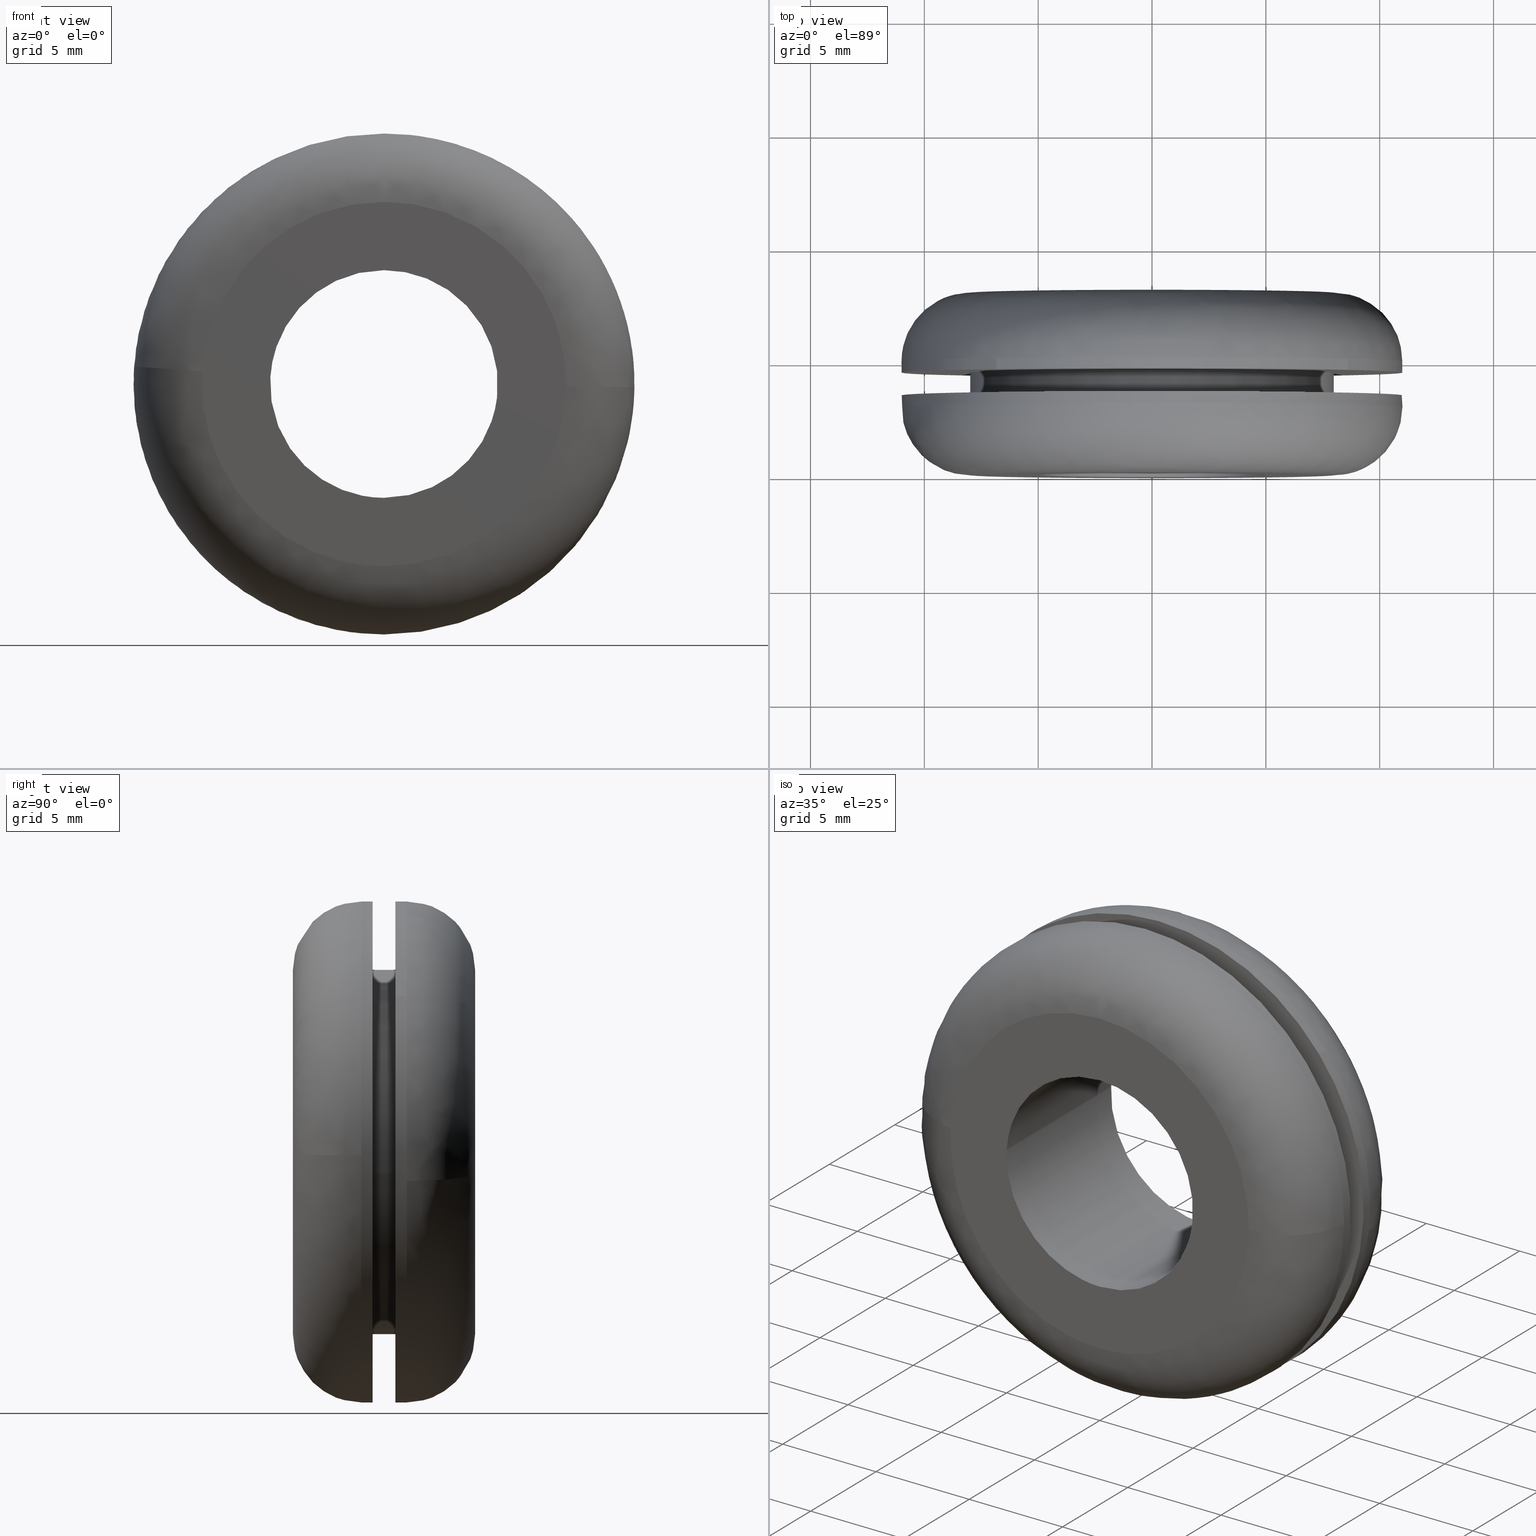
[diagram: canonical four-view strip — front | top / right | iso, engineering-drawing reading convention]
A machine part, canonical four-view strip (front | top / right | iso — engineering-drawing reading convention). The complete STEP part file that produces these views, byte-faithful:
ISO-10303-21;
HEADER;
/****************************************************************
 * Generated by software with PDE/Lib inside                    *
 * PDElib Version 4.4.1-0003, patched  Thursday August 19 11:58 *
 * International Technegroup Inc. (www.iti-oh.com)              *
 ****************************************************************/
FILE_DESCRIPTION((''),'2;1');
FILE_NAME('','2005-12-14T13:37:35',(''),(''),'','CADfix','');
FILE_SCHEMA(('AUTOMOTIVE_DESIGN'));
ENDSEC;
DATA;
#5=APPLICATION_CONTEXT('automotive design');
#6=APPLICATION_PROTOCOL_DEFINITION('Draft International Standard','automotive_design',1998,#5);
#7=PRODUCT_CONTEXT('None',#5,'mechanical');
#8=PRODUCT('grommet','','None',(#7));
#9=PRODUCT_RELATED_PRODUCT_CATEGORY('part','description',(#8));
#10=PRODUCT_DEFINITION_FORMATION('None','None',#8);
#11=PRODUCT_DEFINITION_CONTEXT('part definition',#5,'design');
#12=PRODUCT_DEFINITION('None','None',#10,#11);
#18=(NAMED_UNIT(*)PLANE_ANGLE_UNIT()SI_UNIT($,.RADIAN.));
#19=DIMENSIONAL_EXPONENTS(0.0,0.0,0.0,0.0,0.0,0.0,0.0);
#20=PLANE_ANGLE_MEASURE_WITH_UNIT(PLANE_ANGLE_MEASURE(0.017453292500000),#18);
#24=(CONVERSION_BASED_UNIT('DEGREE',#20)NAMED_UNIT(#19)PLANE_ANGLE_UNIT());
#28=(NAMED_UNIT(*)SI_UNIT($,.STERADIAN.)SOLID_ANGLE_UNIT());
#32=(LENGTH_UNIT()NAMED_UNIT(*)SI_UNIT(.MILLI.,.METRE.));
#34=UNCERTAINTY_MEASURE_WITH_UNIT(LENGTH_MEASURE(0.001000000000000),#32,'DISTANCE_ACCURACY_VALUE','');
#36=(GEOMETRIC_REPRESENTATION_CONTEXT(3)GLOBAL_UNCERTAINTY_ASSIGNED_CONTEXT((#34))GLOBAL_UNIT_ASSIGNED_CONTEXT((#24,#28,#32))REPRESENTATION_CONTEXT('None','None'));
#37=AXIS2_PLACEMENT_3D('',#38,#39,#40);
#38=CARTESIAN_POINT('',(0.0,0.0,0.0));
#39=DIRECTION('',(0.0,0.0,1.0));
#40=DIRECTION('',(1.0,0.0,0.0));
#41=ADVANCED_BREP_SHAPE_REPRESENTATION('',(#37,#1229),#36);
#42=PRODUCT_DEFINITION_SHAPE('','',#12);
#43=SHAPE_DEFINITION_REPRESENTATION(#42,#41);
#44=CARTESIAN_POINT('',(5.970017476818081,3.512500000000592,-9.238987570426026));
#45=CARTESIAN_POINT('',(6.505193491859988,3.512500000000591,-8.893169358352523));
#46=CARTESIAN_POINT('',(6.996860423055401,3.512500000000591,-8.487870417264917));
#47=CARTESIAN_POINT('',(15.484730840320312,3.512500000000592,-1.491009994209516));
#48=CARTESIAN_POINT('',(8.487870417264917,3.512500000000591,6.996860423055401));
#49=CARTESIAN_POINT('',(1.491009994209516,3.512500000000592,15.484730840320312));
#50=CARTESIAN_POINT('',(-6.996860423055401,3.512500000000591,8.487870417264917));
#51=CARTESIAN_POINT('',(-15.484730840320312,3.512500000000592,1.491009994209516));
#52=CARTESIAN_POINT('',(-8.487870417264917,3.512500000000591,-6.996860423055401));
#53=CARTESIAN_POINT('',(5.970017476818081,2.987187499975768,-9.238987570426026));
#54=CARTESIAN_POINT('',(6.505193491859988,2.987187499975768,-8.893169358352523));
#55=CARTESIAN_POINT('',(6.996860423055401,2.987187499975767,-8.487870417264917));
#56=CARTESIAN_POINT('',(15.484730840320312,2.987187499975768,-1.491009994209516));
#57=CARTESIAN_POINT('',(8.487870417264917,2.987187499975767,6.996860423055401));
#58=CARTESIAN_POINT('',(1.491009994209516,2.987187499975768,15.484730840320312));
#59=CARTESIAN_POINT('',(-6.996860423055401,2.987187499975767,8.487870417264917));
#60=CARTESIAN_POINT('',(-15.484730840320312,2.987187499975768,1.491009994209516));
#61=CARTESIAN_POINT('',(-8.487870417264917,2.987187499975767,-6.996860423055401));
#69=(BOUNDED_SURFACE()B_SPLINE_SURFACE(2,1,((#44,#53),(#45,#54),(#46,#55),(#47,#56),(#48,#57),(#49,#58),(#50,#59),(#51,#60),(#52,#61)),.UNSPECIFIED.,.F.,.F.,.U.)B_SPLINE_SURFACE_WITH_KNOTS((3,2,2,2,3),(2,2),(0.0,1.458031739553294,19.683428483969472,37.908825228385652,56.134221972801832),(0.0,1.0),.UNSPECIFIED.)GEOMETRIC_REPRESENTATION_ITEM()RATIONAL_B_SPLINE_SURFACE(((0.956886118190660,0.956886118190660),(0.976568542494924,0.976568542494924),(1.0,1.0),(0.707106781186548,0.707106781186548),(1.0,1.0),(0.707106781186548,0.707106781186548),(1.0,1.0),(0.707106781186548,0.707106781186548),(1.0,1.0)))REPRESENTATION_ITEM('')SURFACE());
#70=CARTESIAN_POINT('',(5.970017122025991,2.999999999996160,-9.238987799683866));
#71=VERTEX_POINT('',#70);
#72=CARTESIAN_POINT('',(10.999131486241900,2.999999999976373,-0.138226438722938));
#73=VERTEX_POINT('',#72);
#74=CARTESIAN_POINT('',(5.970017122025991,2.999999999996160,-9.238987799683866));
#75=CARTESIAN_POINT('',(10.924998957870597,2.999999999989205,-6.037195076424144));
#76=CARTESIAN_POINT('',(10.999131486241904,2.999999999976373,-0.138226438722938));
#84=(BOUNDED_CURVE()B_SPLINE_CURVE(2,(#74,#75,#76),.UNSPECIFIED.,.F.,.U.)B_SPLINE_CURVE_WITH_KNOTS((3,3),(0.092934731225705,0.247784295921534),.UNSPECIFIED.)CURVE()GEOMETRIC_REPRESENTATION_ITEM()RATIONAL_B_SPLINE_CURVE((0.863190106682967,0.816652486740030,0.994854295643566))REPRESENTATION_ITEM(''));
#85=EDGE_CURVE('',#71,#73,#84,.T.);
#86=ORIENTED_EDGE('',*,*,#85,.F.);
#87=CARTESIAN_POINT('',(5.970017151710191,3.500000000000000,-9.238987780503120));
#88=VERTEX_POINT('',#87);
#89=CARTESIAN_POINT('',(5.970017151710191,3.500000000000000,-9.238987780503120));
#90=CARTESIAN_POINT('',(5.970017122025991,2.999999999996160,-9.238987799683866));
#91=QUASI_UNIFORM_CURVE('',1,(#89,#90),.UNSPECIFIED.,.F.,.U.);
#92=EDGE_CURVE('',#88,#71,#91,.T.);
#93=ORIENTED_EDGE('',*,*,#92,.F.);
#94=CARTESIAN_POINT('',(0.0,3.500000000000000,11.0));
#95=VERTEX_POINT('',#94);
#96=CARTESIAN_POINT('',(5.970017151710191,3.500000000000000,-9.238987780503120));
#97=CARTESIAN_POINT('',(11.0,3.500000000000000,-5.988731121177693));
#98=CARTESIAN_POINT('',(11.0,3.500000000000000,-1.836910E-016));
#99=CARTESIAN_POINT('',(11.0,3.499999999999999,11.0));
#100=CARTESIAN_POINT('',(0.0,3.500000000000000,11.0));
#108=(BOUNDED_CURVE()B_SPLINE_CURVE(2,(#96,#97,#98,#99,#100),.UNSPECIFIED.,.F.,.U.)B_SPLINE_CURVE_WITH_KNOTS((3,2,3),(0.092934732206239,0.250000000000000,0.500000000000000),.UNSPECIFIED.)CURVE()GEOMETRIC_REPRESENTATION_ITEM()RATIONAL_B_SPLINE_CURVE((0.863190106093599,0.815986592608353,1.0,0.707106781186548,1.0))REPRESENTATION_ITEM(''));
#109=EDGE_CURVE('',#88,#95,#108,.T.);
#110=ORIENTED_EDGE('',*,*,#109,.T.);
#111=CARTESIAN_POINT('',(-8.487870567302275,3.500000000000000,-6.996860241045525));
#112=VERTEX_POINT('',#111);
#113=CARTESIAN_POINT('',(0.0,3.500000000000000,11.0));
#114=CARTESIAN_POINT('',(-11.0,3.499999999999999,11.0));
#115=CARTESIAN_POINT('',(-11.0,3.500000000000000,-1.836910E-016));
#116=CARTESIAN_POINT('',(-11.0,3.500000000000000,-3.949403286060939));
#117=CARTESIAN_POINT('',(-8.487870567302275,3.500000000000000,-6.996860241045525));
#125=(BOUNDED_CURVE()B_SPLINE_CURVE(2,(#113,#114,#115,#116,#117),.UNSPECIFIED.,.F.,.U.)B_SPLINE_CURVE_WITH_KNOTS((3,2,3),(0.500000000000000,0.750000000000000,0.860504619373458),.UNSPECIFIED.)CURVE()GEOMETRIC_REPRESENTATION_ITEM()RATIONAL_B_SPLINE_CURVE((1.0,0.707106781186548,1.0,0.870535785351809,0.855522720801075))REPRESENTATION_ITEM(''));
#126=EDGE_CURVE('',#95,#112,#125,.T.);
#127=ORIENTED_EDGE('',*,*,#126,.T.);
#128=CARTESIAN_POINT('',(-8.487870932863761,2.999999999999981,-6.996859797583897));
#129=VERTEX_POINT('',#128);
#130=CARTESIAN_POINT('',(-8.487870567302275,3.500000000000000,-6.996860241045525));
#131=CARTESIAN_POINT('',(-8.487870932863761,2.999999999999981,-6.996859797583897));
#132=QUASI_UNIFORM_CURVE('',1,(#130,#131),.UNSPECIFIED.,.F.,.U.);
#133=EDGE_CURVE('',#112,#129,#132,.T.);
#134=ORIENTED_EDGE('',*,*,#133,.T.);
#135=CARTESIAN_POINT('',(-10.973222412244651,2.999999999976504,0.767065767331439));
#136=VERTEX_POINT('',#135);
#137=CARTESIAN_POINT('',(-10.973222412244642,2.999999999976505,0.767065767331439));
#138=CARTESIAN_POINT('',(-11.000000000000004,3.000000000000000,0.384000274623409));
#139=CARTESIAN_POINT('',(-11.0,3.0,-1.836910E-016));
#140=CARTESIAN_POINT('',(-11.0,3.000000000000000,-3.949402637264811));
#141=CARTESIAN_POINT('',(-8.487870932863761,2.999999999999981,-6.996859797583897));
#149=(BOUNDED_CURVE()B_SPLINE_CURVE(2,(#137,#138,#139,#140,#141),.UNSPECIFIED.,.F.,.U.)B_SPLINE_CURVE_WITH_KNOTS((3,2,3),(0.737833686535085,0.750000000000000,0.860504603570302),.UNSPECIFIED.)CURVE()GEOMETRIC_REPRESENTATION_ITEM()RATIONAL_B_SPLINE_CURVE((0.972879876386962,0.985746277152671,1.0,0.870535803866359,0.855522725095084))REPRESENTATION_ITEM(''));
#150=EDGE_CURVE('',#136,#129,#149,.T.);
#151=ORIENTED_EDGE('',*,*,#150,.F.);
#152=CARTESIAN_POINT('',(0.0,3.0,11.0));
#153=VERTEX_POINT('',#152);
#154=CARTESIAN_POINT('',(0.0,3.0,11.0));
#155=CARTESIAN_POINT('',(-10.257905319929851,3.000000000000001,11.0));
#156=CARTESIAN_POINT('',(-10.973222412244647,2.999999999976504,0.767065767331439));
#164=(BOUNDED_CURVE()B_SPLINE_CURVE(2,(#154,#155,#156),.UNSPECIFIED.,.F.,.U.)B_SPLINE_CURVE_WITH_KNOTS((3,3),(0.500000000000000,0.737833686535085),.UNSPECIFIED.)CURVE()GEOMETRIC_REPRESENTATION_ITEM()RATIONAL_B_SPLINE_CURVE((1.0,0.721360504033877,0.972879876386962))REPRESENTATION_ITEM(''));
#165=EDGE_CURVE('',#153,#136,#164,.T.);
#166=ORIENTED_EDGE('',*,*,#165,.F.);
#167=CARTESIAN_POINT('',(10.999131486241900,2.999999999976372,-0.138226438722938));
#168=CARTESIAN_POINT('',(11.000000000000005,3.000000000000000,-0.069115947916848));
#169=CARTESIAN_POINT('',(11.0,3.0,-1.836910E-016));
#170=CARTESIAN_POINT('',(11.0,3.0,11.0));
#171=CARTESIAN_POINT('',(0.0,3.0,11.0));
#179=(BOUNDED_CURVE()B_SPLINE_CURVE(2,(#167,#168,#169,#170,#171),.UNSPECIFIED.,.F.,.U.)B_SPLINE_CURVE_WITH_KNOTS((3,2,3),(0.247784295921534,0.250000000000000,0.500000000000000),.UNSPECIFIED.)CURVE()GEOMETRIC_REPRESENTATION_ITEM()RATIONAL_B_SPLINE_CURVE((0.994854295643566,0.997404141202081,1.0,0.707106781186548,1.0))REPRESENTATION_ITEM(''));
#180=EDGE_CURVE('',#73,#153,#179,.T.);
#181=ORIENTED_EDGE('',*,*,#180,.F.);
#182=EDGE_LOOP('',(#86,#93,#110,#127,#134,#151,#166,#181));
#183=FACE_OUTER_BOUND('',#182,.T.);
#184=ADVANCED_FACE('',(#183),#69,.T.);
#185=CARTESIAN_POINT('',(-8.487870417264917,3.512500000000591,-6.996860423055401));
#186=CARTESIAN_POINT('',(-2.257224278689583,3.512500000000591,-14.555238587324340));
#187=CARTESIAN_POINT('',(5.970017476818081,3.512500000000592,-9.238987570426026));
#188=CARTESIAN_POINT('',(-8.487870417264917,2.987187499975767,-6.996860423055401));
#189=CARTESIAN_POINT('',(-2.257224278689583,2.987187499975768,-14.555238587324340));
#190=CARTESIAN_POINT('',(5.970017476818081,2.987187499975768,-9.238987570426026));
#198=(BOUNDED_SURFACE()B_SPLINE_SURFACE(2,1,((#185,#188),(#186,#189),(#187,#190)),.UNSPECIFIED.,.F.,.F.,.U.)B_SPLINE_SURFACE_WITH_KNOTS((3,3),(2,2),(0.0,16.748973519779121),(0.0,1.0),.UNSPECIFIED.)GEOMETRIC_REPRESENTATION_ITEM()RATIONAL_B_SPLINE_SURFACE(((1.0,1.0),(0.730538238691624,0.730538238691624),(0.956886118190660,0.956886118190660)))REPRESENTATION_ITEM('')SURFACE());
#199=CARTESIAN_POINT('',(0.0,3.0,-11.0));
#200=VERTEX_POINT('',#199);
#201=CARTESIAN_POINT('',(0.0,3.0,-11.0));
#202=CARTESIAN_POINT('',(3.244736562206635,3.000000000000000,-11.0));
#203=CARTESIAN_POINT('',(5.970017122025991,2.999999999996159,-9.238987799683866));
#211=(BOUNDED_CURVE()B_SPLINE_CURVE(2,(#201,#202,#203),.UNSPECIFIED.,.F.,.U.)B_SPLINE_CURVE_WITH_KNOTS((3,3),(0.0,0.092934731225705),.UNSPECIFIED.)CURVE()GEOMETRIC_REPRESENTATION_ITEM()RATIONAL_B_SPLINE_CURVE((1.0,0.891120189726961,0.863190106682967))REPRESENTATION_ITEM(''));
#212=EDGE_CURVE('',#200,#71,#211,.T.);
#213=ORIENTED_EDGE('',*,*,#212,.F.);
#214=CARTESIAN_POINT('',(-8.487870932863761,2.999999999999982,-6.996859797583897));
#215=CARTESIAN_POINT('',(-5.187937797377877,3.000000000000000,-11.0));
#216=CARTESIAN_POINT('',(0.0,3.0,-11.0));
#224=(BOUNDED_CURVE()B_SPLINE_CURVE(2,(#214,#215,#216),.UNSPECIFIED.,.F.,.U.)B_SPLINE_CURVE_WITH_KNOTS((3,3),(0.860504603570303,1.0),.UNSPECIFIED.)CURVE()GEOMETRIC_REPRESENTATION_ITEM()RATIONAL_B_SPLINE_CURVE((0.855522725095084,0.836570977320190,1.0))REPRESENTATION_ITEM(''));
#225=EDGE_CURVE('',#129,#200,#224,.T.);
#226=ORIENTED_EDGE('',*,*,#225,.F.);
#227=ORIENTED_EDGE('',*,*,#133,.F.);
#228=CARTESIAN_POINT('',(0.0,3.500000000000000,-11.0));
#229=VERTEX_POINT('',#228);
#230=CARTESIAN_POINT('',(-8.487870567302277,3.500000000000001,-6.996860241045524));
#231=CARTESIAN_POINT('',(-5.187937094830029,3.500000000000000,-11.0));
#232=CARTESIAN_POINT('',(0.0,3.500000000000000,-11.0));
#240=(BOUNDED_CURVE()B_SPLINE_CURVE(2,(#230,#231,#232),.UNSPECIFIED.,.F.,.U.)B_SPLINE_CURVE_WITH_KNOTS((3,3),(0.860504619373459,1.0),.UNSPECIFIED.)CURVE()GEOMETRIC_REPRESENTATION_ITEM()RATIONAL_B_SPLINE_CURVE((0.855522720801075,0.836570995834738,1.0))REPRESENTATION_ITEM(''));
#241=EDGE_CURVE('',#112,#229,#240,.T.);
#242=ORIENTED_EDGE('',*,*,#241,.T.);
#243=CARTESIAN_POINT('',(0.0,3.500000000000000,-11.0));
#244=CARTESIAN_POINT('',(3.244736600624007,3.500000000000000,-11.0));
#245=CARTESIAN_POINT('',(5.970017151710191,3.500000000000000,-9.238987780503120));
#253=(BOUNDED_CURVE()B_SPLINE_CURVE(2,(#243,#244,#245),.UNSPECIFIED.,.F.,.U.)B_SPLINE_CURVE_WITH_KNOTS((3,3),(0.0,0.092934732206239),.UNSPECIFIED.)CURVE()GEOMETRIC_REPRESENTATION_ITEM()RATIONAL_B_SPLINE_CURVE((1.0,0.891120188578194,0.863190106093599))REPRESENTATION_ITEM(''));
#254=EDGE_CURVE('',#229,#88,#253,.T.);
#255=ORIENTED_EDGE('',*,*,#254,.T.);
#256=ORIENTED_EDGE('',*,*,#92,.T.);
#257=EDGE_LOOP('',(#213,#226,#227,#242,#255,#256));
#258=FACE_OUTER_BOUND('',#257,.T.);
#259=ADVANCED_FACE('',(#258),#198,.T.);
#260=CARTESIAN_POINT('',(7.944076210909330,4.525000000000003,-0.944273877254068));
#261=CARTESIAN_POINT('',(7.971100923588844,4.525000000000001,-0.716917829103822));
#262=CARTESIAN_POINT('',(7.985078387374934,4.525000000000001,-0.488388316278856));
#263=CARTESIAN_POINT('',(8.473466703653790,4.525000000000001,7.496690071096078));
#264=CARTESIAN_POINT('',(0.488388316278856,4.525000000000001,7.985078387374934));
#265=CARTESIAN_POINT('',(-7.496690071096078,4.525000000000001,8.473466703653790));
#266=CARTESIAN_POINT('',(-7.985078387374934,4.525000000000001,0.488388316278856));
#267=CARTESIAN_POINT('',(7.944076210909330,3.474375000000000,-0.944273877254068));
#268=CARTESIAN_POINT('',(7.971100923588844,3.474374999999998,-0.716917829103822));
#269=CARTESIAN_POINT('',(7.985078387374934,3.474374999999999,-0.488388316278856));
#270=CARTESIAN_POINT('',(8.473466703653790,3.474375000000000,7.496690071096078));
#271=CARTESIAN_POINT('',(0.488388316278856,3.474374999999999,7.985078387374934));
#272=CARTESIAN_POINT('',(-7.496690071096078,3.474375000000000,8.473466703653790));
#273=CARTESIAN_POINT('',(-7.985078387374934,3.474374999999999,0.488388316278856));
#281=(BOUNDED_SURFACE()B_SPLINE_SURFACE(2,1,((#260,#267),(#261,#268),(#262,#269),(#263,#270),(#264,#271),(#265,#272),(#266,#273)),.UNSPECIFIED.,.F.,.F.,.U.)B_SPLINE_SURFACE_WITH_KNOTS((3,2,2,3),(2,2),(0.0,0.530193359837562,13.785027355776601,27.039861351715629),(0.0,1.0),.UNSPECIFIED.)GEOMETRIC_REPRESENTATION_ITEM()RATIONAL_B_SPLINE_SURFACE(((0.977505800795127,0.977505800795127),(0.988284271247462,0.988284271247462),(1.0,1.0),(0.707106781186548,0.707106781186548),(1.0,1.0),(0.707106781186548,0.707106781186548),(1.0,1.0)))REPRESENTATION_ITEM('')SURFACE());
#282=CARTESIAN_POINT('',(7.944076711329176,3.499999999999871,-0.944269667255826));
#283=VERTEX_POINT('',#282);
#284=CARTESIAN_POINT('',(0.0,3.500000000000000,8.0));
#285=VERTEX_POINT('',#284);
#286=CARTESIAN_POINT('',(7.944076711329176,3.499999999999871,-0.944269667255826));
#287=CARTESIAN_POINT('',(8.0,3.500000000000000,-0.473790829962546));
#288=CARTESIAN_POINT('',(8.0,3.500000000000000,-1.836910E-016));
#289=CARTESIAN_POINT('',(8.0,3.499999999999999,8.0));
#290=CARTESIAN_POINT('',(0.0,3.500000000000000,8.0));
#298=(BOUNDED_CURVE()B_SPLINE_CURVE(2,(#286,#287,#288,#289,#290),.UNSPECIFIED.,.F.,.U.)B_SPLINE_CURVE_WITH_KNOTS((3,2,3),(0.229562563079665,0.250000000000000,0.500000000000000),.UNSPECIFIED.)CURVE()GEOMETRIC_REPRESENTATION_ITEM()RATIONAL_B_SPLINE_CURVE((0.956026929737107,0.976056053264425,1.0,0.707106781186548,1.0))REPRESENTATION_ITEM(''));
#299=EDGE_CURVE('',#283,#285,#298,.T.);
#300=ORIENTED_EDGE('',*,*,#299,.F.);
#301=CARTESIAN_POINT('',(7.944076705149378,4.500000000000001,-0.944269719246281));
#302=VERTEX_POINT('',#301);
#303=CARTESIAN_POINT('',(7.944076705149378,4.500000000000001,-0.944269719246281));
#304=CARTESIAN_POINT('',(7.944076711329176,3.499999999999871,-0.944269667255826));
#305=QUASI_UNIFORM_CURVE('',1,(#303,#304),.UNSPECIFIED.,.F.,.U.);
#306=EDGE_CURVE('',#302,#283,#305,.T.);
#307=ORIENTED_EDGE('',*,*,#306,.F.);
#308=CARTESIAN_POINT('',(0.0,4.500000000000000,8.0));
#309=VERTEX_POINT('',#308);
#310=CARTESIAN_POINT('',(7.944076705149379,4.500000000000001,-0.944269719246281));
#311=CARTESIAN_POINT('',(8.0,4.500000000000001,-0.473790856232588));
#312=CARTESIAN_POINT('',(8.0,4.500000000000000,-1.836910E-016));
#313=CARTESIAN_POINT('',(8.0,4.500000000000000,8.0));
#314=CARTESIAN_POINT('',(0.0,4.500000000000000,8.0));
#322=(BOUNDED_CURVE()B_SPLINE_CURVE(2,(#310,#311,#312,#313,#314),.UNSPECIFIED.,.F.,.U.)B_SPLINE_CURVE_WITH_KNOTS((3,2,3),(0.229562561973614,0.250000000000000,0.500000000000000),.UNSPECIFIED.)CURVE()GEOMETRIC_REPRESENTATION_ITEM()RATIONAL_B_SPLINE_CURVE((0.956026927569199,0.976056051968605,1.0,0.707106781186548,1.0))REPRESENTATION_ITEM(''));
#323=EDGE_CURVE('',#302,#309,#322,.T.);
#324=ORIENTED_EDGE('',*,*,#323,.T.);
#325=CARTESIAN_POINT('',(-7.985078749891537,4.500000000000000,0.488382389112600));
#326=VERTEX_POINT('',#325);
#327=CARTESIAN_POINT('',(0.0,4.500000000000000,8.0));
#328=CARTESIAN_POINT('',(-7.525654131826543,4.500000000000000,8.0));
#329=CARTESIAN_POINT('',(-7.985078749891537,4.500000000000000,0.488382389112600));
#337=(BOUNDED_CURVE()B_SPLINE_CURVE(2,(#327,#328,#329),.UNSPECIFIED.,.F.,.U.)B_SPLINE_CURVE_WITH_KNOTS((3,3),(0.500000000000000,0.739333090320061),.UNSPECIFIED.)CURVE()GEOMETRIC_REPRESENTATION_ITEM()RATIONAL_B_SPLINE_CURVE((1.0,0.719603843230347,0.976072316169088))REPRESENTATION_ITEM(''));
#338=EDGE_CURVE('',#309,#326,#337,.T.);
#339=ORIENTED_EDGE('',*,*,#338,.T.);
#340=CARTESIAN_POINT('',(-7.985078754423820,3.499999999999808,0.488382315008604));
#341=VERTEX_POINT('',#340);
#342=CARTESIAN_POINT('',(-7.985078749891537,4.500000000000000,0.488382389112600));
#343=CARTESIAN_POINT('',(-7.985078754423820,3.499999999999808,0.488382315008604));
#344=QUASI_UNIFORM_CURVE('',1,(#342,#343),.UNSPECIFIED.,.F.,.U.);
#345=EDGE_CURVE('',#326,#341,#344,.T.);
#346=ORIENTED_EDGE('',*,*,#345,.T.);
#347=CARTESIAN_POINT('',(0.0,3.500000000000000,8.0));
#348=CARTESIAN_POINT('',(-7.525654201797441,3.500000000000000,8.0));
#349=CARTESIAN_POINT('',(-7.985078754423820,3.499999999999809,0.488382315008604));
#357=(BOUNDED_CURVE()B_SPLINE_CURVE(2,(#347,#348,#349),.UNSPECIFIED.,.F.,.U.)B_SPLINE_CURVE_WITH_KNOTS((3,3),(0.500000000000000,0.739333091921349),.UNSPECIFIED.)CURVE()GEOMETRIC_REPRESENTATION_ITEM()RATIONAL_B_SPLINE_CURVE((1.0,0.719603841354321,0.976072319600957))REPRESENTATION_ITEM(''));
#358=EDGE_CURVE('',#285,#341,#357,.T.);
#359=ORIENTED_EDGE('',*,*,#358,.F.);
#360=EDGE_LOOP('',(#300,#307,#324,#339,#346,#359));
#361=FACE_OUTER_BOUND('',#360,.T.);
#362=ADVANCED_FACE('',(#361),#281,.T.);
#363=CARTESIAN_POINT('',(-7.985078387374934,4.525000000000001,0.488388316278856));
#364=CARTESIAN_POINT('',(-8.473466703653790,4.525000000000001,-7.496690071096078));
#365=CARTESIAN_POINT('',(-0.488388316278856,4.525000000000001,-7.985078387374934));
#366=CARTESIAN_POINT('',(7.052347926716008,4.525000000000001,-8.446289573860220));
#367=CARTESIAN_POINT('',(7.944076210909330,4.525000000000003,-0.944273877254068));
#368=CARTESIAN_POINT('',(-7.985078387374934,3.474374999999999,0.488388316278856));
#369=CARTESIAN_POINT('',(-8.473466703653790,3.474375000000000,-7.496690071096078));
#370=CARTESIAN_POINT('',(-0.488388316278856,3.474374999999999,-7.985078387374934));
#371=CARTESIAN_POINT('',(7.052347926716008,3.474375000000000,-8.446289573860220));
#372=CARTESIAN_POINT('',(7.944076210909330,3.474375000000000,-0.944273877254068));
#380=(BOUNDED_SURFACE()B_SPLINE_SURFACE(2,1,((#363,#368),(#364,#369),(#365,#370),(#366,#371),(#367,#372)),.UNSPECIFIED.,.F.,.F.,.U.)B_SPLINE_SURFACE_WITH_KNOTS((3,2,3),(2,2),(0.0,13.254833995939039,25.979474632040510),(0.0,1.0),.UNSPECIFIED.)GEOMETRIC_REPRESENTATION_ITEM()RATIONAL_B_SPLINE_SURFACE(((1.0,1.0),(0.707106781186548,0.707106781186548),(1.0,1.0),(0.718822509939086,0.718822509939086),(0.977505800795127,0.977505800795127)))REPRESENTATION_ITEM('')SURFACE());
#381=CARTESIAN_POINT('',(0.0,3.500000000000000,-8.0));
#382=VERTEX_POINT('',#381);
#383=CARTESIAN_POINT('',(0.0,3.500000000000000,-8.0));
#384=CARTESIAN_POINT('',(7.105399999655853,3.500000000000000,-8.0));
#385=CARTESIAN_POINT('',(7.944076711329176,3.499999999999871,-0.944269667255826));
#393=(BOUNDED_CURVE()B_SPLINE_CURVE(2,(#383,#384,#385),.UNSPECIFIED.,.F.,.U.)B_SPLINE_CURVE_WITH_KNOTS((3,3),(0.0,0.229562563079665),.UNSPECIFIED.)CURVE()GEOMETRIC_REPRESENTATION_ITEM()RATIONAL_B_SPLINE_CURVE((1.0,0.731050727922123,0.956026929737107))REPRESENTATION_ITEM(''));
#394=EDGE_CURVE('',#382,#283,#393,.T.);
#395=ORIENTED_EDGE('',*,*,#394,.F.);
#396=CARTESIAN_POINT('',(-7.985078754423820,3.499999999999809,0.488382315008604));
#397=CARTESIAN_POINT('',(-8.0,3.500000000000000,0.244419097340268));
#398=CARTESIAN_POINT('',(-8.0,3.500000000000000,-1.836910E-016));
#399=CARTESIAN_POINT('',(-8.0,3.499999999999999,-8.0));
#400=CARTESIAN_POINT('',(0.0,3.500000000000000,-8.0));
#408=(BOUNDED_CURVE()B_SPLINE_CURVE(2,(#396,#397,#398,#399,#400),.UNSPECIFIED.,.F.,.U.)B_SPLINE_CURVE_WITH_KNOTS((3,2,3),(0.739333091921349,0.750000000000000,1.0),.UNSPECIFIED.)CURVE()GEOMETRIC_REPRESENTATION_ITEM()RATIONAL_B_SPLINE_CURVE((0.976072319600957,0.987502939832226,1.0,0.707106781186548,1.0))REPRESENTATION_ITEM(''));
#409=EDGE_CURVE('',#341,#382,#408,.T.);
#410=ORIENTED_EDGE('',*,*,#409,.F.);
#411=ORIENTED_EDGE('',*,*,#345,.F.);
#412=CARTESIAN_POINT('',(0.0,4.500000000000000,-8.0));
#413=VERTEX_POINT('',#412);
#414=CARTESIAN_POINT('',(-7.985078749891537,4.500000000000000,0.488382389112600));
#415=CARTESIAN_POINT('',(-8.0,4.500000000000001,0.244419134496152));
#416=CARTESIAN_POINT('',(-8.0,4.500000000000000,-1.836910E-016));
#417=CARTESIAN_POINT('',(-8.0,4.500000000000000,-8.0));
#418=CARTESIAN_POINT('',(0.0,4.500000000000000,-8.0));
#426=(BOUNDED_CURVE()B_SPLINE_CURVE(2,(#414,#415,#416,#417,#418),.UNSPECIFIED.,.F.,.U.)B_SPLINE_CURVE_WITH_KNOTS((3,2,3),(0.739333090320061,0.750000000000000,1.0),.UNSPECIFIED.)CURVE()GEOMETRIC_REPRESENTATION_ITEM()RATIONAL_B_SPLINE_CURVE((0.976072316169088,0.987502937956201,1.0,0.707106781186548,1.0))REPRESENTATION_ITEM(''));
#427=EDGE_CURVE('',#326,#413,#426,.T.);
#428=ORIENTED_EDGE('',*,*,#427,.T.);
#429=CARTESIAN_POINT('',(0.0,4.500000000000000,-8.0));
#430=CARTESIAN_POINT('',(7.105399952826813,4.500000000000001,-8.000000000000002));
#431=CARTESIAN_POINT('',(7.944076705149378,4.500000000000001,-0.944269719246281));
#439=(BOUNDED_CURVE()B_SPLINE_CURVE(2,(#429,#430,#431),.UNSPECIFIED.,.F.,.U.)B_SPLINE_CURVE_WITH_KNOTS((3,3),(0.0,0.229562561973614),.UNSPECIFIED.)CURVE()GEOMETRIC_REPRESENTATION_ITEM()RATIONAL_B_SPLINE_CURVE((1.0,0.731050729217943,0.956026927569199))REPRESENTATION_ITEM(''));
#440=EDGE_CURVE('',#413,#302,#439,.T.);
#441=ORIENTED_EDGE('',*,*,#440,.T.);
#442=ORIENTED_EDGE('',*,*,#306,.T.);
#443=EDGE_LOOP('',(#395,#410,#411,#428,#441,#442));
#444=FACE_OUTER_BOUND('',#443,.T.);
#445=ADVANCED_FACE('',(#444),#380,.T.);
#446=CARTESIAN_POINT('',(-6.847661003013814,5.012500000000000,8.608689725376550));
#447=CARTESIAN_POINT('',(-15.456350728390364,5.012500000000000,1.761028722362737));
#448=CARTESIAN_POINT('',(-8.608689725376550,5.012500000000000,-6.847661003013814));
#449=CARTESIAN_POINT('',(-1.761028722362737,5.012500000000000,-15.456350728390364));
#450=CARTESIAN_POINT('',(6.847661003013814,5.012500000000000,-8.608689725376550));
#451=CARTESIAN_POINT('',(15.456350728390364,5.012500000000000,-1.761028722362737));
#452=CARTESIAN_POINT('',(8.608689725376550,5.012500000000000,6.847661003013814));
#453=CARTESIAN_POINT('',(-6.847661003013814,4.487187499999999,8.608689725376550));
#454=CARTESIAN_POINT('',(-15.456350728390364,4.487187500000000,1.761028722362737));
#455=CARTESIAN_POINT('',(-8.608689725376550,4.487187499999999,-6.847661003013814));
#456=CARTESIAN_POINT('',(-1.761028722362737,4.487187500000000,-15.456350728390364));
#457=CARTESIAN_POINT('',(6.847661003013814,4.487187499999999,-8.608689725376550));
#458=CARTESIAN_POINT('',(15.456350728390364,4.487187500000000,-1.761028722362737));
#459=CARTESIAN_POINT('',(8.608689725376550,4.487187499999999,6.847661003013814));
#467=(BOUNDED_SURFACE()B_SPLINE_SURFACE(2,1,((#446,#453),(#447,#454),(#448,#455),(#449,#456),(#450,#457),(#451,#458),(#452,#459)),.UNSPECIFIED.,.F.,.F.,.U.)B_SPLINE_SURFACE_WITH_KNOTS((3,2,2,3),(2,2),(0.0,18.225396744416180,36.450793488832353,54.676190233248533),(0.0,1.0),.UNSPECIFIED.)GEOMETRIC_REPRESENTATION_ITEM()RATIONAL_B_SPLINE_SURFACE(((1.0,1.0),(0.707106781186548,0.707106781186548),(1.0,1.0),(0.707106781186548,0.707106781186548),(1.0,1.0),(0.707106781186548,0.707106781186548),(1.0,1.0)))REPRESENTATION_ITEM('')SURFACE());
#468=CARTESIAN_POINT('',(-6.847659759509885,4.999997327031879,8.608690714501691));
#469=VERTEX_POINT('',#468);
#470=CARTESIAN_POINT('',(-10.999999999986491,4.999993635083300,0.000000040508539));
#471=VERTEX_POINT('',#470);
#472=CARTESIAN_POINT('',(-6.847659759509885,4.999997327031879,8.608690714501691));
#473=CARTESIAN_POINT('',(-10.999999980450745,4.999995170119266,5.305771143828039));
#474=CARTESIAN_POINT('',(-10.999999999986498,4.999993635083300,0.000000040508539));
#482=(BOUNDED_CURVE()B_SPLINE_CURVE(2,(#472,#473,#474),.UNSPECIFIED.,.F.,.U.)B_SPLINE_CURVE_WITH_KNOTS((3,3),(0.607863855525802,0.749999999349003),.UNSPECIFIED.)CURVE()GEOMETRIC_REPRESENTATION_ITEM()RATIONAL_B_SPLINE_CURVE((0.856305625667745,0.833477148645429,0.999999998474619))REPRESENTATION_ITEM(''));
#483=EDGE_CURVE('',#469,#471,#482,.T.);
#484=ORIENTED_EDGE('',*,*,#483,.T.);
#485=CARTESIAN_POINT('',(0.0,5.0,-11.0));
#486=VERTEX_POINT('',#485);
#487=CARTESIAN_POINT('',(-10.999999999986491,4.999993635083299,0.000000040508539));
#488=CARTESIAN_POINT('',(-11.000000040501790,4.999996817541650,-11.000000000000004));
#489=CARTESIAN_POINT('',(0.0,5.0,-11.0));
#497=(BOUNDED_CURVE()B_SPLINE_CURVE(2,(#487,#488,#489),.UNSPECIFIED.,.F.,.U.)B_SPLINE_CURVE_WITH_KNOTS((3,3),(0.749999999349003,1.0),.UNSPECIFIED.)CURVE()GEOMETRIC_REPRESENTATION_ITEM()RATIONAL_B_SPLINE_CURVE((1.000000001525381,0.707106780423857,1.0))REPRESENTATION_ITEM(''));
#498=EDGE_CURVE('',#471,#486,#497,.T.);
#499=ORIENTED_EDGE('',*,*,#498,.T.);
#500=CARTESIAN_POINT('',(10.926428796232919,4.999993594133243,-1.270099901782031));
#501=VERTEX_POINT('',#500);
#502=CARTESIAN_POINT('',(0.0,5.0,-11.0));
#503=CARTESIAN_POINT('',(9.795414684534430,4.999996797066623,-10.999999999999092));
#504=CARTESIAN_POINT('',(10.926428796232921,4.999993594133243,-1.270099901782032));
#512=(BOUNDED_CURVE()B_SPLINE_CURVE(2,(#502,#503,#504),.UNSPECIFIED.,.F.,.U.)B_SPLINE_CURVE_WITH_KNOTS((3,3),(0.0,0.230000102498727),.UNSPECIFIED.)CURVE()GEOMETRIC_REPRESENTATION_ITEM()RATIONAL_B_SPLINE_CURVE((1.0,0.730538118606896,0.956886319933102))REPRESENTATION_ITEM(''));
#513=EDGE_CURVE('',#486,#501,#512,.T.);
#514=ORIENTED_EDGE('',*,*,#513,.T.);
#515=CARTESIAN_POINT('',(8.608690716608271,4.999996558794283,6.847659756859606));
#516=VERTEX_POINT('',#515);
#517=CARTESIAN_POINT('',(10.926428796232921,4.999993594133243,-1.270099901782032));
#518=CARTESIAN_POINT('',(10.999999999984812,4.999993759347692,-0.637180776195252));
#519=CARTESIAN_POINT('',(10.999999999985260,4.999993944879290,1.713962E-012));
#520=CARTESIAN_POINT('',(10.999999999987985,4.999995063393439,3.841371074389513));
#521=CARTESIAN_POINT('',(8.608690716608271,4.999996558794283,6.847659756859606));
#529=(BOUNDED_CURVE()B_SPLINE_CURVE(2,(#517,#518,#519,#520,#521),.UNSPECIFIED.,.F.,.U.)B_SPLINE_CURVE_WITH_KNOTS((3,2,3),(0.230000102498727,0.250000000000000,0.357863855479069),.UNSPECIFIED.)CURVE()GEOMETRIC_REPRESENTATION_ITEM()RATIONAL_B_SPLINE_CURVE((0.956886319933102,0.976568662579652,1.0,0.873629632700425,0.856305625682757))REPRESENTATION_ITEM(''));
#530=EDGE_CURVE('',#501,#516,#529,.T.);
#531=ORIENTED_EDGE('',*,*,#530,.T.);
#532=CARTESIAN_POINT('',(8.608690875344491,4.500000000000000,6.847659557305477));
#533=VERTEX_POINT('',#532);
#534=CARTESIAN_POINT('',(8.608690716608271,4.999996558794283,6.847659756859606));
#535=CARTESIAN_POINT('',(8.608690875344491,4.500000000000000,6.847659557305477));
#536=QUASI_UNIFORM_CURVE('',1,(#534,#535),.UNSPECIFIED.,.F.,.U.);
#537=EDGE_CURVE('',#516,#533,#536,.T.);
#538=ORIENTED_EDGE('',*,*,#537,.T.);
#539=CARTESIAN_POINT('',(0.0,4.500000000000000,-11.0));
#540=VERTEX_POINT('',#539);
#541=CARTESIAN_POINT('',(0.0,4.500000000000000,-11.0));
#542=CARTESIAN_POINT('',(11.0,4.500000000000000,-11.0));
#543=CARTESIAN_POINT('',(11.0,4.500000000000000,-1.836910E-016));
#544=CARTESIAN_POINT('',(11.0,4.500000000000000,3.841370931349212));
#545=CARTESIAN_POINT('',(8.608690875344491,4.499999999999999,6.847659557305478));
#553=(BOUNDED_CURVE()B_SPLINE_CURVE(2,(#541,#542,#543,#544,#545),.UNSPECIFIED.,.F.,.U.)B_SPLINE_CURVE_WITH_KNOTS((3,2,3),(0.0,0.250000000000000,0.357863851970168),.UNSPECIFIED.)CURVE()GEOMETRIC_REPRESENTATION_ITEM()RATIONAL_B_SPLINE_CURVE((1.0,0.707106781186548,1.0,0.873629636811360,0.856305626809886))REPRESENTATION_ITEM(''));
#554=EDGE_CURVE('',#540,#533,#553,.T.);
#555=ORIENTED_EDGE('',*,*,#554,.F.);
#556=CARTESIAN_POINT('',(-6.847659774495628,4.500000000000000,8.608690702583754));
#557=VERTEX_POINT('',#556);
#558=CARTESIAN_POINT('',(-6.847659774495628,4.500000000000000,8.608690702583754));
#559=CARTESIAN_POINT('',(-11.0,4.500000000000001,5.305771116487904));
#560=CARTESIAN_POINT('',(-11.0,4.500000000000000,-1.836910E-016));
#561=CARTESIAN_POINT('',(-11.0,4.500000000000000,-11.0));
#562=CARTESIAN_POINT('',(0.0,4.500000000000000,-11.0));
#570=(BOUNDED_CURVE()B_SPLINE_CURVE(2,(#558,#559,#560,#561,#562),.UNSPECIFIED.,.F.,.U.)B_SPLINE_CURVE_WITH_KNOTS((3,2,3),(0.607863855789230,0.750000000000000,1.0),.UNSPECIFIED.)CURVE()GEOMETRIC_REPRESENTATION_ITEM()RATIONAL_B_SPLINE_CURVE((0.856305625583127,0.833477148849498,1.0,0.707106781186548,1.0))REPRESENTATION_ITEM(''));
#571=EDGE_CURVE('',#557,#540,#570,.T.);
#572=ORIENTED_EDGE('',*,*,#571,.F.);
#573=CARTESIAN_POINT('',(-6.847659759509885,4.999997327031879,8.608690714501691));
#574=CARTESIAN_POINT('',(-6.847659774495628,4.500000000000000,8.608690702583754));
#575=QUASI_UNIFORM_CURVE('',1,(#573,#574),.UNSPECIFIED.,.F.,.U.);
#576=EDGE_CURVE('',#469,#557,#575,.T.);
#577=ORIENTED_EDGE('',*,*,#576,.F.);
#578=EDGE_LOOP('',(#484,#499,#514,#531,#538,#555,#572,#577));
#579=FACE_OUTER_BOUND('',#578,.T.);
#580=ADVANCED_FACE('',(#579),#467,.T.);
#581=CARTESIAN_POINT('',(8.608689725376550,5.012500000000000,6.847661003013814));
#582=CARTESIAN_POINT('',(1.761028722362737,5.012500000000000,15.456350728390364));
#583=CARTESIAN_POINT('',(-6.847661003013814,5.012500000000000,8.608689725376550));
#584=CARTESIAN_POINT('',(8.608689725376550,4.487187499999999,6.847661003013814));
#585=CARTESIAN_POINT('',(1.761028722362737,4.487187500000000,15.456350728390364));
#586=CARTESIAN_POINT('',(-6.847661003013814,4.487187499999999,8.608689725376550));
#594=(BOUNDED_SURFACE()B_SPLINE_SURFACE(2,1,((#581,#584),(#582,#585),(#583,#586)),.UNSPECIFIED.,.F.,.F.,.U.)B_SPLINE_SURFACE_WITH_KNOTS((3,3),(2,2),(0.0,18.225396744416180),(0.0,1.0),.UNSPECIFIED.)GEOMETRIC_REPRESENTATION_ITEM()RATIONAL_B_SPLINE_SURFACE(((1.0,1.0),(0.707106781186548,0.707106781186548),(1.0,1.0)))REPRESENTATION_ITEM('')SURFACE());
#595=CARTESIAN_POINT('',(0.0,5.0,11.0));
#596=VERTEX_POINT('',#595);
#597=CARTESIAN_POINT('',(0.0,5.0,11.0));
#598=CARTESIAN_POINT('',(-3.841371076290788,4.999998888636045,11.0));
#599=CARTESIAN_POINT('',(-6.847659759509885,4.999997327031879,8.608690714501691));
#607=(BOUNDED_CURVE()B_SPLINE_CURVE(2,(#597,#598,#599),.UNSPECIFIED.,.F.,.U.)B_SPLINE_CURVE_WITH_KNOTS((3,3),(0.500000000000000,0.607863855525802),.UNSPECIFIED.)CURVE()GEOMETRIC_REPRESENTATION_ITEM()RATIONAL_B_SPLINE_CURVE((1.0,0.873629632645675,0.856305625667745))REPRESENTATION_ITEM(''));
#608=EDGE_CURVE('',#596,#469,#607,.T.);
#609=ORIENTED_EDGE('',*,*,#608,.T.);
#610=ORIENTED_EDGE('',*,*,#576,.T.);
#611=CARTESIAN_POINT('',(0.0,4.500000000000000,11.0));
#612=VERTEX_POINT('',#611);
#613=CARTESIAN_POINT('',(0.0,4.500000000000000,11.0));
#614=CARTESIAN_POINT('',(-3.841371087031690,4.500000000000000,11.0));
#615=CARTESIAN_POINT('',(-6.847659774495628,4.500000000000000,8.608690702583754));
#623=(BOUNDED_CURVE()B_SPLINE_CURVE(2,(#613,#614,#615),.UNSPECIFIED.,.F.,.U.)B_SPLINE_CURVE_WITH_KNOTS((3,3),(0.500000000000000,0.607863855789230),.UNSPECIFIED.)CURVE()GEOMETRIC_REPRESENTATION_ITEM()RATIONAL_B_SPLINE_CURVE((1.0,0.873629632337049,0.856305625583127))REPRESENTATION_ITEM(''));
#624=EDGE_CURVE('',#612,#557,#623,.T.);
#625=ORIENTED_EDGE('',*,*,#624,.F.);
#626=CARTESIAN_POINT('',(8.608690875344491,4.499999999999999,6.847659557305478));
#627=CARTESIAN_POINT('',(5.305771287531594,4.500000000000000,10.999999999999998));
#628=CARTESIAN_POINT('',(0.0,4.500000000000000,11.0));
#636=(BOUNDED_CURVE()B_SPLINE_CURVE(2,(#626,#627,#628),.UNSPECIFIED.,.F.,.U.)B_SPLINE_CURVE_WITH_KNOTS((3,3),(0.357863851970168,0.500000000000000),.UNSPECIFIED.)CURVE()GEOMETRIC_REPRESENTATION_ITEM()RATIONAL_B_SPLINE_CURVE((0.856305626809886,0.833477144375188,1.0))REPRESENTATION_ITEM(''));
#637=EDGE_CURVE('',#533,#612,#636,.T.);
#638=ORIENTED_EDGE('',*,*,#637,.F.);
#639=ORIENTED_EDGE('',*,*,#537,.F.);
#640=CARTESIAN_POINT('',(8.608690716608271,4.999996558794283,6.847659756859606));
#641=CARTESIAN_POINT('',(5.305771130375673,4.999998624267890,11.000000000000391));
#642=CARTESIAN_POINT('',(0.0,5.0,11.0));
#650=(BOUNDED_CURVE()B_SPLINE_CURVE(2,(#640,#641,#642),.UNSPECIFIED.,.F.,.U.)B_SPLINE_CURVE_WITH_KNOTS((3,3),(0.357863855479069,0.500000000000000),.UNSPECIFIED.)CURVE()GEOMETRIC_REPRESENTATION_ITEM()RATIONAL_B_SPLINE_CURVE((0.856305625682757,0.833477148486122,1.0))REPRESENTATION_ITEM(''));
#651=EDGE_CURVE('',#516,#596,#650,.T.);
#652=ORIENTED_EDGE('',*,*,#651,.T.);
#653=EDGE_LOOP('',(#609,#610,#625,#638,#639,#652));
#654=FACE_OUTER_BOUND('',#653,.T.);
#655=ADVANCED_FACE('',(#654),#594,.T.);
#656=CARTESIAN_POINT('',(4.965047631818332,8.200000000000003,-0.590171173283793));
#657=CARTESIAN_POINT('',(4.981938077243028,8.200000000000001,-0.448073643189889));
#658=CARTESIAN_POINT('',(4.990673992109334,8.200000000000001,-0.305242697674285));
#659=CARTESIAN_POINT('',(5.295916689783620,8.200000000000001,4.685431294435048));
#660=CARTESIAN_POINT('',(0.305242697674285,8.200000000000001,4.990673992109334));
#661=CARTESIAN_POINT('',(-4.685431294435048,8.200000000000001,5.295916689783618));
#662=CARTESIAN_POINT('',(-4.990673992109334,8.200000000000001,0.305242697674285));
#663=CARTESIAN_POINT('',(4.965047631818332,-0.205000000000002,-0.590171173283793));
#664=CARTESIAN_POINT('',(4.981938077243028,-0.205000000000002,-0.448073643189889));
#665=CARTESIAN_POINT('',(4.990673992109334,-0.205000000000002,-0.305242697674285));
#666=CARTESIAN_POINT('',(5.295916689783620,-0.205000000000002,4.685431294435048));
#667=CARTESIAN_POINT('',(0.305242697674285,-0.205000000000002,4.990673992109334));
#668=CARTESIAN_POINT('',(-4.685431294435048,-0.205000000000002,5.295916689783618));
#669=CARTESIAN_POINT('',(-4.990673992109334,-0.205000000000002,0.305242697674285));
#677=(BOUNDED_SURFACE()B_SPLINE_SURFACE(2,1,((#656,#663),(#657,#664),(#658,#665),(#659,#666),(#660,#667),(#661,#668),(#662,#669)),.UNSPECIFIED.,.F.,.F.,.U.)B_SPLINE_SURFACE_WITH_KNOTS((3,2,2,3),(2,2),(0.0,0.331370849898476,8.615642097360375,16.899913344822270),(0.0,8.405000000000003),.UNSPECIFIED.)GEOMETRIC_REPRESENTATION_ITEM()RATIONAL_B_SPLINE_SURFACE(((0.977505800795127,0.977505800795127),(0.988284271247462,0.988284271247462),(1.0,1.0),(0.707106781186548,0.707106781186548),(1.0,1.0),(0.707106781186548,0.707106781186548),(1.0,1.0)))REPRESENTATION_ITEM('')SURFACE());
#678=CARTESIAN_POINT('',(4.965048615628705,7.999999999999972,-0.590162896473502));
#679=VERTEX_POINT('',#678);
#680=CARTESIAN_POINT('',(0.0,8.0,5.0));
#681=VERTEX_POINT('',#680);
#682=CARTESIAN_POINT('',(4.965048615628706,7.999999999999972,-0.590162896473502));
#683=CARTESIAN_POINT('',(5.000000000000001,8.0,-0.296116416104750));
#684=CARTESIAN_POINT('',(5.0,8.0,-1.836910E-016));
#685=CARTESIAN_POINT('',(5.000000000000001,8.0,5.000000000000001));
#686=CARTESIAN_POINT('',(0.0,8.0,5.0));
#694=(BOUNDED_CURVE()B_SPLINE_CURVE(2,(#682,#683,#684,#685,#686),.UNSPECIFIED.,.F.,.U.)B_SPLINE_CURVE_WITH_KNOTS((3,2,3),(0.229562755246671,0.250000000000000,0.500000000000000),.UNSPECIFIED.)CURVE()GEOMETRIC_REPRESENTATION_ITEM()RATIONAL_B_SPLINE_CURVE((0.956027306392972,0.976056278402077,1.0,0.707106781186548,1.0))REPRESENTATION_ITEM(''));
#695=EDGE_CURVE('',#679,#681,#694,.T.);
#696=ORIENTED_EDGE('',*,*,#695,.F.);
#697=CARTESIAN_POINT('',(4.965048603780581,-1.211676E-015,-0.590162996153337));
#698=VERTEX_POINT('',#697);
#699=CARTESIAN_POINT('',(4.965048615628705,7.999999999999972,-0.590162896473502));
#700=CARTESIAN_POINT('',(4.965048603780581,-1.211676E-015,-0.590162996153337));
#701=QUASI_UNIFORM_CURVE('',1,(#699,#700),.UNSPECIFIED.,.F.,.U.);
#702=EDGE_CURVE('',#679,#698,#701,.T.);
#703=ORIENTED_EDGE('',*,*,#702,.T.);
#704=CARTESIAN_POINT('',(0.0,-9.184548E-016,5.0));
#705=VERTEX_POINT('',#704);
#706=CARTESIAN_POINT('',(4.965048603780581,-1.211676E-015,-0.590162996153337));
#707=CARTESIAN_POINT('',(5.0,-9.184548E-016,-0.296116466471544));
#708=CARTESIAN_POINT('',(5.0,-9.184548E-016,-1.836910E-016));
#709=CARTESIAN_POINT('',(5.000000000000001,-9.184548E-016,5.000000000000001));
#710=CARTESIAN_POINT('',(0.0,-9.184548E-016,5.0));
#718=(BOUNDED_CURVE()B_SPLINE_CURVE(2,(#706,#707,#708,#709,#710),.UNSPECIFIED.,.F.,.U.)B_SPLINE_CURVE_WITH_KNOTS((3,2,3),(0.229562751853709,0.250000000000000,0.500000000000000),.UNSPECIFIED.)CURVE()GEOMETRIC_REPRESENTATION_ITEM()RATIONAL_B_SPLINE_CURVE((0.956027299742609,0.976056274426974,1.0,0.707106781186548,1.0))REPRESENTATION_ITEM(''));
#719=EDGE_CURVE('',#698,#705,#718,.T.);
#720=ORIENTED_EDGE('',*,*,#719,.T.);
#721=CARTESIAN_POINT('',(-4.990674043846146,-1.278017E-015,0.305241851782545));
#722=VERTEX_POINT('',#721);
#723=CARTESIAN_POINT('',(0.0,-9.184548E-016,5.0));
#724=CARTESIAN_POINT('',(-4.703531931953192,-9.184548E-016,5.000000000000001));
#725=CARTESIAN_POINT('',(-4.990674043846147,-1.278017E-015,0.305241851782545));
#733=(BOUNDED_CURVE()B_SPLINE_CURVE(2,(#723,#724,#725),.UNSPECIFIED.,.F.,.U.)B_SPLINE_CURVE_WITH_KNOTS((3,3),(0.500000000000000,0.739333020733432),.UNSPECIFIED.)CURVE()GEOMETRIC_REPRESENTATION_ITEM()RATIONAL_B_SPLINE_CURVE((1.0,0.719603924756153,0.976072167031575))REPRESENTATION_ITEM(''));
#734=EDGE_CURVE('',#705,#722,#733,.T.);
#735=ORIENTED_EDGE('',*,*,#734,.T.);
#736=CARTESIAN_POINT('',(-4.990674044478091,8.0,0.305241841450281));
#737=VERTEX_POINT('',#736);
#738=CARTESIAN_POINT('',(-4.990674044478091,8.0,0.305241841450281));
#739=CARTESIAN_POINT('',(-4.990674043846146,-1.278017E-015,0.305241851782545));
#740=QUASI_UNIFORM_CURVE('',1,(#738,#739),.UNSPECIFIED.,.F.,.U.);
#741=EDGE_CURVE('',#737,#722,#740,.T.);
#742=ORIENTED_EDGE('',*,*,#741,.F.);
#743=CARTESIAN_POINT('',(0.0,8.0,5.0));
#744=CARTESIAN_POINT('',(-4.703531951465122,8.0,5.0));
#745=CARTESIAN_POINT('',(-4.990674044478091,8.0,0.305241841450281));
#753=(BOUNDED_CURVE()B_SPLINE_CURVE(2,(#743,#744,#745),.UNSPECIFIED.,.F.,.U.)B_SPLINE_CURVE_WITH_KNOTS((3,3),(0.500000000000000,0.739333021447883),.UNSPECIFIED.)CURVE()GEOMETRIC_REPRESENTATION_ITEM()RATIONAL_B_SPLINE_CURVE((1.0,0.719603923919122,0.976072168562780))REPRESENTATION_ITEM(''));
#754=EDGE_CURVE('',#681,#737,#753,.T.);
#755=ORIENTED_EDGE('',*,*,#754,.F.);
#756=EDGE_LOOP('',(#696,#703,#720,#735,#742,#755));
#757=FACE_OUTER_BOUND('',#756,.T.);
#758=ADVANCED_FACE('',(#757),#677,.F.);
#759=CARTESIAN_POINT('',(-4.986467740332711,8.200000000000001,0.374014306318153));
#760=CARTESIAN_POINT('',(-4.988564846854461,8.199999999999998,0.339726917769500));
#761=CARTESIAN_POINT('',(-5.295916689783620,8.200000000000001,-4.685431294435050));
#762=CARTESIAN_POINT('',(-0.305242697674285,8.200000000000001,-4.990673992109334));
#763=CARTESIAN_POINT('',(4.407717454197504,8.200000000000001,-5.278930983662638));
#764=CARTESIAN_POINT('',(4.969220639709384,8.200000000000003,-0.555064099463600));
#765=CARTESIAN_POINT('',(4.973371219426771,8.200000000000003,-0.520145711495202));
#766=CARTESIAN_POINT('',(-4.986467740332711,-0.205000000000002,0.374014306318153));
#767=CARTESIAN_POINT('',(-4.988564846854461,-0.205000000000002,0.339726917769500));
#768=CARTESIAN_POINT('',(-5.295916689783620,-0.205000000000002,-4.685431294435050));
#769=CARTESIAN_POINT('',(-0.305242697674285,-0.205000000000002,-4.990673992109334));
#770=CARTESIAN_POINT('',(4.407717454197504,-0.205000000000002,-5.278930983662638));
#771=CARTESIAN_POINT('',(4.969220639709384,-0.205000000000002,-0.555064099463600));
#772=CARTESIAN_POINT('',(4.973371219426771,-0.205000000000002,-0.520145711495202));
#780=(BOUNDED_SURFACE()B_SPLINE_SURFACE(2,1,((#759,#766),(#760,#767),(#761,#768),(#762,#769),(#763,#770),(#764,#771),(#765,#772)),.UNSPECIFIED.,.F.,.F.,.U.)B_SPLINE_SURFACE_WITH_KNOTS((3,1,2,1,3),(2,2),(0.0,0.081184906297859,8.365456153759757,16.318356551323181,16.399551995985270),(0.0,8.405000000000005),.UNSPECIFIED.)GEOMETRIC_REPRESENTATION_ITEM()RATIONAL_B_SPLINE_SURFACE(((1.005740639777321,1.005740639777321),(1.002870319888661,1.002870319888661),(0.707106781186548,0.707106781186548),(1.0,1.0),(0.718822509939086,0.718822509939086),(0.980146837873140,0.980146837873140),(0.982787874951153,0.982787874951153)))REPRESENTATION_ITEM('')SURFACE());
#781=CARTESIAN_POINT('',(0.0,8.0,-5.0));
#782=VERTEX_POINT('',#781);
#783=CARTESIAN_POINT('',(0.0,8.0,-5.0));
#784=CARTESIAN_POINT('',(4.440880084878231,8.0,-4.999999999999999));
#785=CARTESIAN_POINT('',(4.965048615628706,7.999999999999972,-0.590162896473502));
#793=(BOUNDED_CURVE()B_SPLINE_CURVE(2,(#783,#784,#785),.UNSPECIFIED.,.F.,.U.)B_SPLINE_CURVE_WITH_KNOTS((3,3),(0.0,0.229562755246671),.UNSPECIFIED.)CURVE()GEOMETRIC_REPRESENTATION_ITEM()RATIONAL_B_SPLINE_CURVE((1.0,0.731050502784471,0.956027306392972))REPRESENTATION_ITEM(''));
#794=EDGE_CURVE('',#782,#679,#793,.T.);
#795=ORIENTED_EDGE('',*,*,#794,.F.);
#796=CARTESIAN_POINT('',(-4.990674044478091,8.0,0.305241841450280));
#797=CARTESIAN_POINT('',(-4.999999999999999,8.0,0.152762957868185));
#798=CARTESIAN_POINT('',(-5.0,8.0,-1.836910E-016));
#799=CARTESIAN_POINT('',(-5.000000000000001,8.0,-5.000000000000001));
#800=CARTESIAN_POINT('',(0.0,8.0,-5.0));
#808=(BOUNDED_CURVE()B_SPLINE_CURVE(2,(#796,#797,#798,#799,#800),.UNSPECIFIED.,.F.,.U.)B_SPLINE_CURVE_WITH_KNOTS((3,2,3),(0.739333021447884,0.750000000000000,1.0),.UNSPECIFIED.)CURVE()GEOMETRIC_REPRESENTATION_ITEM()RATIONAL_B_SPLINE_CURVE((0.976072168562782,0.987502857267426,1.0,0.707106781186548,1.0))REPRESENTATION_ITEM(''));
#809=EDGE_CURVE('',#737,#782,#808,.T.);
#810=ORIENTED_EDGE('',*,*,#809,.F.);
#811=ORIENTED_EDGE('',*,*,#741,.T.);
#812=CARTESIAN_POINT('',(0.0,-9.184548E-016,-5.0));
#813=VERTEX_POINT('',#812);
#814=CARTESIAN_POINT('',(-4.990674043846146,-1.278017E-015,0.305241851782545));
#815=CARTESIAN_POINT('',(-5.000000000000001,-9.184548E-016,0.152762968229419));
#816=CARTESIAN_POINT('',(-5.0,-9.184548E-016,-1.836910E-016));
#817=CARTESIAN_POINT('',(-5.000000000000001,-9.184548E-016,-5.000000000000001));
#818=CARTESIAN_POINT('',(0.0,-9.184548E-016,-5.0));
#826=(BOUNDED_CURVE()B_SPLINE_CURVE(2,(#814,#815,#816,#817,#818),.UNSPECIFIED.,.F.,.U.)B_SPLINE_CURVE_WITH_KNOTS((3,2,3),(0.739333020733432,0.750000000000000,1.0),.UNSPECIFIED.)CURVE()GEOMETRIC_REPRESENTATION_ITEM()RATIONAL_B_SPLINE_CURVE((0.976072167031574,0.987502856430394,1.0,0.707106781186548,1.0))REPRESENTATION_ITEM(''));
#827=EDGE_CURVE('',#722,#813,#826,.T.);
#828=ORIENTED_EDGE('',*,*,#827,.T.);
#829=CARTESIAN_POINT('',(0.0,-9.184548E-016,-5.0));
#830=CARTESIAN_POINT('',(4.440879995094166,-9.184548E-016,-5.0));
#831=CARTESIAN_POINT('',(4.965048603780581,-1.211676E-015,-0.590162996153337));
#839=(BOUNDED_CURVE()B_SPLINE_CURVE(2,(#829,#830,#831),.UNSPECIFIED.,.F.,.U.)B_SPLINE_CURVE_WITH_KNOTS((3,3),(0.0,0.229562751853709),.UNSPECIFIED.)CURVE()GEOMETRIC_REPRESENTATION_ITEM()RATIONAL_B_SPLINE_CURVE((1.0,0.731050506759574,0.956027299742609))REPRESENTATION_ITEM(''));
#840=EDGE_CURVE('',#813,#698,#839,.T.);
#841=ORIENTED_EDGE('',*,*,#840,.T.);
#842=ORIENTED_EDGE('',*,*,#702,.F.);
#843=EDGE_LOOP('',(#795,#810,#811,#828,#841,#842));
#844=FACE_OUTER_BOUND('',#843,.T.);
#845=ADVANCED_FACE('',(#844),#780,.F.);
#846=CARTESIAN_POINT('',(-10.965978228283376,3.208611335769386,0.766558765937777));
#847=CARTESIAN_POINT('',(-10.987916789658303,3.208611335769384,0.452717483197977));
#848=CARTESIAN_POINT('',(-10.991870155500933,3.208611335769385,0.138135185340199));
#849=CARTESIAN_POINT('',(-11.130005340841130,3.208611335769386,-10.853734970160732));
#850=CARTESIAN_POINT('',(-0.138135185340200,3.208611335769385,-10.991870155500933));
#851=CARTESIAN_POINT('',(10.853734970160730,3.208611335769386,-11.130005340841130));
#852=CARTESIAN_POINT('',(10.991870155500933,3.208611335769385,-0.138135185340201));
#853=CARTESIAN_POINT('',(-11.205267658361432,-0.232611728469922,0.783285902031253));
#854=CARTESIAN_POINT('',(-11.227684942722933,-0.232611728469922,0.462596265216840));
#855=CARTESIAN_POINT('',(-11.231724575256932,-0.232611728469922,0.141149443538208));
#856=CARTESIAN_POINT('',(-11.372874018795137,-0.232611728469922,-11.090575131718722));
#857=CARTESIAN_POINT('',(-0.141149443538208,-0.232611728469922,-11.231724575256932));
#858=CARTESIAN_POINT('',(11.090575131718721,-0.232611728469922,-11.372874018795137));
#859=CARTESIAN_POINT('',(11.231724575256932,-0.232611728469922,-0.141149443538209));
#860=CARTESIAN_POINT('',(-7.772421660445090,0.007261921755989,0.543318419237051));
#861=CARTESIAN_POINT('',(-7.787971185173284,0.007261921755989,0.320875265226654));
#862=CARTESIAN_POINT('',(-7.790773235812743,0.007261921755989,0.097906897520426));
#863=CARTESIAN_POINT('',(-7.888680133333168,0.007261921755989,-7.692866338292316));
#864=CARTESIAN_POINT('',(-0.097906897520426,0.007261921755989,-7.790773235812743));
#865=CARTESIAN_POINT('',(7.692866338292316,0.007261921755989,-7.888680133333168));
#866=CARTESIAN_POINT('',(7.790773235812743,0.007261921755989,-0.097906897520427));
#874=(BOUNDED_SURFACE()B_SPLINE_SURFACE(2,2,((#846,#853,#860),(#847,#854,#861),(#848,#855,#862),(#849,#856,#863),(#850,#857,#864),(#851,#858,#865),(#852,#859,#866)),.UNSPECIFIED.,.F.,.F.,.U.)B_SPLINE_SURFACE_WITH_KNOTS((3,2,2,3),(3,3),(0.0,0.728533898324524,18.941898726055879,37.155263553787222),(0.0,5.467122061680981),.UNSPECIFIED.)GEOMETRIC_REPRESENTATION_ITEM()RATIONAL_B_SPLINE_SURFACE(((0.889999301068235,0.584039748018019,0.889999335365820),(0.899812872104528,0.590479658193582,0.899812906780295),(0.910479796259388,0.597479559977835,0.910479831346223),(0.643806438068360,0.422481848480682,0.643806462878498),(0.910479796259388,0.597479559977835,0.910479831346223),(0.643806438068360,0.422481848480682,0.643806462878498),(0.910479796259388,0.597479559977835,0.910479831346223)))REPRESENTATION_ITEM('')SURFACE());
#875=ORIENTED_EDGE('',*,*,#150,.T.);
#876=ORIENTED_EDGE('',*,*,#225,.T.);
#877=ORIENTED_EDGE('',*,*,#212,.T.);
#878=ORIENTED_EDGE('',*,*,#85,.T.);
#879=CARTESIAN_POINT('',(7.999368353661293,-1.633963E-016,-0.100528319070165));
#880=VERTEX_POINT('',#879);
#881=CARTESIAN_POINT('',(10.999131486241900,2.999999999976372,-0.138226438722938));
#882=CARTESIAN_POINT('',(10.999131486194724,6.161021E-011,-0.138226438716285));
#883=CARTESIAN_POINT('',(7.999368353661293,-1.633963E-016,-0.100528319070165));
#891=(BOUNDED_CURVE()B_SPLINE_CURVE(2,(#881,#882,#883),.UNSPECIFIED.,.F.,.U.)B_SPLINE_CURVE_WITH_KNOTS((3,3),(-1.725134643265661,-0.274865356739246),.UNSPECIFIED.)CURVE()GEOMETRIC_REPRESENTATION_ITEM()RATIONAL_B_SPLINE_CURVE((0.883342149647296,0.624617224134219,0.883342149645545))REPRESENTATION_ITEM(''));
#892=EDGE_CURVE('',#73,#880,#891,.T.);
#893=ORIENTED_EDGE('',*,*,#892,.T.);
#894=CARTESIAN_POINT('',(0.0,-1.332268E-015,-8.0));
#895=VERTEX_POINT('',#894);
#896=CARTESIAN_POINT('',(0.0,-1.332268E-015,-8.0));
#897=CARTESIAN_POINT('',(7.900095439252673,-1.332268E-015,-8.0));
#898=CARTESIAN_POINT('',(7.999368353661293,-1.633963E-016,-0.100528319070165));
#906=(BOUNDED_CURVE()B_SPLINE_CURVE(2,(#896,#897,#898),.UNSPECIFIED.,.F.,.U.)B_SPLINE_CURVE_WITH_KNOTS((3,3),(0.0,0.247784295921598),.UNSPECIFIED.)CURVE()GEOMETRIC_REPRESENTATION_ITEM()RATIONAL_B_SPLINE_CURVE((1.0,0.709702639984392,0.994854295643713))REPRESENTATION_ITEM(''));
#907=EDGE_CURVE('',#895,#880,#906,.T.);
#908=ORIENTED_EDGE('',*,*,#907,.F.);
#909=CARTESIAN_POINT('',(-7.980525390874352,-1.518274E-016,0.557866012641688));
#910=VERTEX_POINT('',#909);
#911=CARTESIAN_POINT('',(-7.980525390874352,-1.518274E-016,0.557866012641688));
#912=CARTESIAN_POINT('',(-8.000000000000002,-1.332268E-015,0.279272927025262));
#913=CARTESIAN_POINT('',(-8.0,-1.332268E-015,-1.836910E-016));
#914=CARTESIAN_POINT('',(-8.0,-1.332268E-015,-8.0));
#915=CARTESIAN_POINT('',(0.0,-1.332268E-015,-8.0));
#923=(BOUNDED_CURVE()B_SPLINE_CURVE(2,(#911,#912,#913,#914,#915),.UNSPECIFIED.,.F.,.U.)B_SPLINE_CURVE_WITH_KNOTS((3,2,3),(0.737833686533951,0.750000000000000,1.0),.UNSPECIFIED.)CURVE()GEOMETRIC_REPRESENTATION_ITEM()RATIONAL_B_SPLINE_CURVE((0.972879876384563,0.985746277151341,1.0,0.707106781186548,1.0))REPRESENTATION_ITEM(''));
#924=EDGE_CURVE('',#910,#895,#923,.T.);
#925=ORIENTED_EDGE('',*,*,#924,.F.);
#926=CARTESIAN_POINT('',(-10.973222412244645,2.999999999976504,0.767065767331439));
#927=CARTESIAN_POINT('',(-10.973222412197876,3.063725E-010,0.767065767326587));
#928=CARTESIAN_POINT('',(-7.980525390874352,-1.518274E-016,0.557866012641688));
#936=(BOUNDED_CURVE()B_SPLINE_CURVE(2,(#926,#927,#928),.UNSPECIFIED.,.F.,.U.)B_SPLINE_CURVE_WITH_KNOTS((3,3),(-1.725134643265751,-0.274865356822913),.UNSPECIFIED.)CURVE()GEOMETRIC_REPRESENTATION_ITEM()RATIONAL_B_SPLINE_CURVE((0.863472075367100,0.610566959882324,0.863472075336177))REPRESENTATION_ITEM(''));
#937=EDGE_CURVE('',#136,#910,#936,.T.);
#938=ORIENTED_EDGE('',*,*,#937,.F.);
#939=EDGE_LOOP('',(#875,#876,#877,#878,#893,#908,#925,#938));
#940=FACE_OUTER_BOUND('',#939,.T.);
#941=ADVANCED_FACE('',(#940),#874,.T.);
#942=CARTESIAN_POINT('',(10.991870155500933,3.208611335769385,-0.138135185340198));
#943=CARTESIAN_POINT('',(11.130005340841128,3.208611335769386,10.853734970160732));
#944=CARTESIAN_POINT('',(0.138135185340199,3.208611335769385,10.991870155500933));
#945=CARTESIAN_POINT('',(-10.242075206949785,3.208611335769385,11.122318592948279));
#946=CARTESIAN_POINT('',(-10.965978185977434,3.208611335769385,0.766559371143613));
#947=CARTESIAN_POINT('',(11.231724575256932,-0.232611728469922,-0.141149443538206));
#948=CARTESIAN_POINT('',(11.372874018795134,-0.232611728469922,11.090575131718722));
#949=CARTESIAN_POINT('',(0.141149443538207,-0.232611728469922,11.231724575256932));
#950=CARTESIAN_POINT('',(-10.465568295123763,-0.232611728469922,11.365019537802318));
#951=CARTESIAN_POINT('',(-11.205267615132330,-0.232611728469922,0.783286520443330));
#952=CARTESIAN_POINT('',(7.790773235812743,0.007261921755989,-0.097906897520425));
#953=CARTESIAN_POINT('',(7.888680133333168,0.007261921755989,7.692866338292316));
#954=CARTESIAN_POINT('',(0.097906897520425,0.007261921755989,7.790773235812743));
#955=CARTESIAN_POINT('',(-7.259336607206242,0.007261921755989,7.883231951276168));
#956=CARTESIAN_POINT('',(-7.772421630459656,0.007261921755989,0.543318848192393));
#964=(BOUNDED_SURFACE()B_SPLINE_SURFACE(2,2,((#942,#947,#952),(#943,#948,#953),(#944,#949,#954),(#945,#950,#955),(#946,#951,#956)),.UNSPECIFIED.,.F.,.F.,.U.)B_SPLINE_SURFACE_WITH_KNOTS((3,2,3),(3,3),(0.0,18.213364827731350,35.698195062353449),(0.0,5.467122061680982),.UNSPECIFIED.)GEOMETRIC_REPRESENTATION_ITEM()RATIONAL_B_SPLINE_SURFACE(((0.910479796259388,0.597479559977835,0.910479831346223),(0.643806438068360,0.422481848480682,0.643806462878498),(0.910479796259388,0.597479559977835,0.910479831346223),(0.654473372396001,0.429481756940568,0.654473397617207),(0.889999282350317,0.584039735734854,0.889999316647901)))REPRESENTATION_ITEM('')SURFACE());
#965=ORIENTED_EDGE('',*,*,#165,.T.);
#966=ORIENTED_EDGE('',*,*,#937,.T.);
#967=CARTESIAN_POINT('',(0.0,-1.332268E-015,8.0));
#968=VERTEX_POINT('',#967);
#969=CARTESIAN_POINT('',(0.0,-1.332268E-015,8.0));
#970=CARTESIAN_POINT('',(-7.460294778081462,-1.332268E-015,8.0));
#971=CARTESIAN_POINT('',(-7.980525390874353,-1.518274E-016,0.557866012641688));
#979=(BOUNDED_CURVE()B_SPLINE_CURVE(2,(#969,#970,#971),.UNSPECIFIED.,.F.,.U.)B_SPLINE_CURVE_WITH_KNOTS((3,3),(0.500000000000000,0.737833686533950),.UNSPECIFIED.)CURVE()GEOMETRIC_REPRESENTATION_ITEM()RATIONAL_B_SPLINE_CURVE((1.0,0.721360504035207,0.972879876384562))REPRESENTATION_ITEM(''));
#980=EDGE_CURVE('',#968,#910,#979,.T.);
#981=ORIENTED_EDGE('',*,*,#980,.F.);
#982=CARTESIAN_POINT('',(7.999368353661293,-1.633963E-016,-0.100528319070165));
#983=CARTESIAN_POINT('',(8.0,-1.332268E-015,-0.050266143938075));
#984=CARTESIAN_POINT('',(8.0,-1.332268E-015,-1.836910E-016));
#985=CARTESIAN_POINT('',(8.0,-1.332268E-015,8.0));
#986=CARTESIAN_POINT('',(0.0,-1.332268E-015,8.0));
#994=(BOUNDED_CURVE()B_SPLINE_CURVE(2,(#982,#983,#984,#985,#986),.UNSPECIFIED.,.F.,.U.)B_SPLINE_CURVE_WITH_KNOTS((3,2,3),(0.247784295921598,0.250000000000000,0.500000000000000),.UNSPECIFIED.)CURVE()GEOMETRIC_REPRESENTATION_ITEM()RATIONAL_B_SPLINE_CURVE((0.994854295643713,0.997404141202155,1.0,0.707106781186548,1.0))REPRESENTATION_ITEM(''));
#995=EDGE_CURVE('',#880,#968,#994,.T.);
#996=ORIENTED_EDGE('',*,*,#995,.F.);
#997=ORIENTED_EDGE('',*,*,#892,.F.);
#998=ORIENTED_EDGE('',*,*,#180,.T.);
#999=EDGE_LOOP('',(#965,#966,#981,#996,#997,#998));
#1000=FACE_OUTER_BOUND('',#999,.T.);
#1001=ADVANCED_FACE('',(#1000),#964,.T.);
#1002=CARTESIAN_POINT('',(7.739832711799163,7.992777030459499,-0.899690394931965));
#1003=CARTESIAN_POINT('',(7.791947972963448,7.992777030459500,-0.451354605847756));
#1004=CARTESIAN_POINT('',(7.791947972963449,7.992777030459499,-1.431310E-015));
#1005=CARTESIAN_POINT('',(7.791947972963452,7.992777030459498,7.791947972963444));
#1006=CARTESIAN_POINT('',(1.908414E-015,7.992777030459499,7.791947972963449));
#1007=CARTESIAN_POINT('',(-7.791947972963444,7.992777030459498,7.791947972963452));
#1008=CARTESIAN_POINT('',(-7.791947972963449,7.992777030459499,2.385517E-015));
#1009=CARTESIAN_POINT('',(11.158093496918619,8.232007918444067,-1.297034434559106));
#1010=CARTESIAN_POINT('',(11.233225218538513,8.232007918444067,-0.650693248787726));
#1011=CARTESIAN_POINT('',(11.233225218538513,8.232007918444067,-2.063442E-015));
#1012=CARTESIAN_POINT('',(11.233225218538518,8.232007918444065,11.233225218538511));
#1013=CARTESIAN_POINT('',(2.751256E-015,8.232007918444067,11.233225218538513));
#1014=CARTESIAN_POINT('',(-11.233225218538507,8.232007918444065,11.233225218538518));
#1015=CARTESIAN_POINT('',(-11.233225218538513,8.232007918444067,3.439070E-015));
#1016=CARTESIAN_POINT('',(10.919175477532315,4.790821003565640,-1.269262226137813));
#1017=CARTESIAN_POINT('',(10.992698472524539,4.790821003565640,-0.636760551210731));
#1018=CARTESIAN_POINT('',(10.992698472524534,4.790821003565640,-2.019259E-015));
#1019=CARTESIAN_POINT('',(10.992698472524539,4.790821003565640,10.992698472524534));
#1020=CARTESIAN_POINT('',(2.692346E-015,4.790821003565640,10.992698472524534));
#1021=CARTESIAN_POINT('',(-10.992698472524534,4.790821003565640,10.992698472524539));
#1022=CARTESIAN_POINT('',(-10.992698472524534,4.790821003565640,3.365432E-015));
#1030=(BOUNDED_SURFACE()B_SPLINE_SURFACE(2,2,((#1002,#1009,#1016),(#1003,#1010,#1017),(#1004,#1011,#1018),(#1005,#1012,#1019),(#1006,#1013,#1020),(#1007,#1014,#1021),(#1008,#1015,#1022)),.UNSPECIFIED.,.F.,.F.,.U.)B_SPLINE_SURFACE_WITH_KNOTS((3,2,2,3),(3,3),(0.0,1.457062544642803,19.670361722233480,37.883660899824157),(0.0,5.467119147862108),.UNSPECIFIED.)GEOMETRIC_REPRESENTATION_ITEM()RATIONAL_B_SPLINE_SURFACE(((0.876475820058013,0.573569487130858,0.871621692974888),(0.894504250672445,0.585367368446751,0.889550277944627),(0.915966664171883,0.599412462700062,0.910893827602927),(0.647686239576760,0.423848617102942,0.644099202439000),(0.915966664171883,0.599412462700062,0.910893827602927),(0.647686239576760,0.423848617102942,0.644099202439000),(0.915966664171883,0.599412462700062,0.910893827602927)))REPRESENTATION_ITEM('')SURFACE());
#1031=ORIENTED_EDGE('',*,*,#651,.F.);
#1032=ORIENTED_EDGE('',*,*,#530,.F.);
#1033=CARTESIAN_POINT('',(7.946493110639366,7.999999999999999,-0.923713834716952));
#1034=VERTEX_POINT('',#1033);
#1035=CARTESIAN_POINT('',(7.946493110639366,7.999999999999999,-0.923713834716952));
#1036=CARTESIAN_POINT('',(10.926434774280517,7.999999999264194,-1.270103951847276));
#1037=CARTESIAN_POINT('',(10.926428796232916,4.999993594133244,-1.270099901782032));
#1045=(BOUNDED_CURVE()B_SPLINE_CURVE(2,(#1035,#1036,#1037),.UNSPECIFIED.,.F.,.U.)B_SPLINE_CURVE_WITH_KNOTS((3,3),(-1.736413120818326,-0.276556519542455),.UNSPECIFIED.)CURVE()GEOMETRIC_REPRESENTATION_ITEM()RATIONAL_B_SPLINE_CURVE((0.850203276212715,0.599621521893180,0.845790053331941))REPRESENTATION_ITEM(''));
#1046=EDGE_CURVE('',#1034,#501,#1045,.T.);
#1047=ORIENTED_EDGE('',*,*,#1046,.F.);
#1048=CARTESIAN_POINT('',(0.0,8.0,8.0));
#1049=VERTEX_POINT('',#1048);
#1050=CARTESIAN_POINT('',(7.946493110639366,7.999999999999999,-0.923713834716952));
#1051=CARTESIAN_POINT('',(8.0,8.0,-0.463406632841483));
#1052=CARTESIAN_POINT('',(8.0,8.0,-1.836910E-016));
#1053=CARTESIAN_POINT('',(8.0,8.0,8.0));
#1054=CARTESIAN_POINT('',(0.0,8.0,8.0));
#1062=(BOUNDED_CURVE()B_SPLINE_CURVE(2,(#1050,#1051,#1052,#1053,#1054),.UNSPECIFIED.,.F.,.U.)B_SPLINE_CURVE_WITH_KNOTS((3,2,3),(0.229999999997536,0.250000000000000,0.500000000000000),.UNSPECIFIED.)CURVE()GEOMETRIC_REPRESENTATION_ITEM()RATIONAL_B_SPLINE_CURVE((0.956886118185810,0.976568542492037,1.0,0.707106781186548,1.0))REPRESENTATION_ITEM(''));
#1063=EDGE_CURVE('',#1034,#1049,#1062,.T.);
#1064=ORIENTED_EDGE('',*,*,#1063,.T.);
#1065=CARTESIAN_POINT('',(-8.000000000034902,8.0,3.854320E-016));
#1066=VERTEX_POINT('',#1065);
#1067=CARTESIAN_POINT('',(0.0,8.0,8.0));
#1068=CARTESIAN_POINT('',(-7.999999999999960,8.0,8.0));
#1069=CARTESIAN_POINT('',(-8.000000000034902,8.0,3.854320E-016));
#1077=(BOUNDED_CURVE()B_SPLINE_CURVE(2,(#1067,#1068,#1069),.UNSPECIFIED.,.F.,.U.)B_SPLINE_CURVE_WITH_KNOTS((3,3),(0.500000000000000,0.749999999999999),.UNSPECIFIED.)CURVE()GEOMETRIC_REPRESENTATION_ITEM()RATIONAL_B_SPLINE_CURVE((1.0,0.707106781186549,0.999999999999998))REPRESENTATION_ITEM(''));
#1078=EDGE_CURVE('',#1049,#1066,#1077,.T.);
#1079=ORIENTED_EDGE('',*,*,#1078,.T.);
#1080=CARTESIAN_POINT('',(-8.000000000034902,8.0,3.854320E-016));
#1081=CARTESIAN_POINT('',(-11.000006364923449,7.999999999930193,3.311308E-016));
#1082=CARTESIAN_POINT('',(-10.999999999986493,4.999993635083301,0.000000040508539));
#1090=(BOUNDED_CURVE()B_SPLINE_CURVE(2,(#1080,#1081,#1082),.UNSPECIFIED.,.F.,.U.)B_SPLINE_CURVE_WITH_KNOTS((3,3),(-1.736413121048088,-0.276556533596388),.UNSPECIFIED.)CURVE()GEOMETRIC_REPRESENTATION_ITEM()RATIONAL_B_SPLINE_CURVE((0.888510409053910,0.626638335396244,0.883898337026271))REPRESENTATION_ITEM(''));
#1091=EDGE_CURVE('',#1066,#471,#1090,.T.);
#1092=ORIENTED_EDGE('',*,*,#1091,.T.);
#1093=ORIENTED_EDGE('',*,*,#483,.F.);
#1094=ORIENTED_EDGE('',*,*,#608,.F.);
#1095=EDGE_LOOP('',(#1031,#1032,#1047,#1064,#1079,#1092,#1093,#1094));
#1096=FACE_OUTER_BOUND('',#1095,.T.);
#1097=ADVANCED_FACE('',(#1096),#1030,.T.);
#1098=CARTESIAN_POINT('',(-7.791947972963449,7.992777030459499,4.771034E-016));
#1099=CARTESIAN_POINT('',(-7.791947972963447,7.992777030459498,-7.791947972963446));
#1100=CARTESIAN_POINT('',(-9.542069E-016,7.992777030459499,-7.791947972963449));
#1101=CARTESIAN_POINT('',(6.938665003199275,7.992777030459498,-7.791947972963450));
#1102=CARTESIAN_POINT('',(7.739832610352421,7.992777030459501,-0.899691267654882));
#1103=CARTESIAN_POINT('',(-11.233225218538513,8.232007918444067,6.878139E-016));
#1104=CARTESIAN_POINT('',(-11.233225218538514,8.232007918444065,-11.233225218538511));
#1105=CARTESIAN_POINT('',(-1.375628E-015,8.232007918444067,-11.233225218538513));
#1106=CARTESIAN_POINT('',(10.003093830628469,8.232007918444062,-11.233225218538511));
#1107=CARTESIAN_POINT('',(11.158093350668398,8.232007918444067,-1.297035692716003));
#1108=CARTESIAN_POINT('',(-10.992698472524534,4.790821003565640,6.730864E-016));
#1109=CARTESIAN_POINT('',(-10.992698472524538,4.790821003565640,-10.992698472524536));
#1110=CARTESIAN_POINT('',(-1.346173E-015,4.790821003565640,-10.992698472524534));
#1111=CARTESIAN_POINT('',(9.788906759476115,4.790821003565640,-10.992698472524538));
#1112=CARTESIAN_POINT('',(10.919175334413612,4.790821003565640,-1.269263457354950));
#1120=(BOUNDED_SURFACE()B_SPLINE_SURFACE(2,2,((#1098,#1103,#1108),(#1099,#1104,#1109),(#1100,#1105,#1110),(#1101,#1106,#1111),(#1102,#1107,#1112)),.UNSPECIFIED.,.F.,.F.,.U.)B_SPLINE_SURFACE_WITH_KNOTS((3,2,3),(3,3),(0.0,18.213299177590670,34.969534420974092),(0.0,5.467119147862104),.UNSPECIFIED.)GEOMETRIC_REPRESENTATION_ITEM()RATIONAL_B_SPLINE_SURFACE(((0.915966664171883,0.599412462700062,0.910893827602927),(0.647686239576760,0.423848617102942,0.644099202439000),(0.915966664171883,0.599412462700062,0.910893827602927),(0.669148673544369,0.437893724750712,0.665442772452114),(0.876475785671481,0.573569464628166,0.871621658778797)))REPRESENTATION_ITEM('')SURFACE());
#1121=ORIENTED_EDGE('',*,*,#513,.F.);
#1122=ORIENTED_EDGE('',*,*,#498,.F.);
#1123=ORIENTED_EDGE('',*,*,#1091,.F.);
#1124=CARTESIAN_POINT('',(0.0,8.0,-8.0));
#1125=VERTEX_POINT('',#1124);
#1126=CARTESIAN_POINT('',(-8.000000000034902,8.0,3.854320E-016));
#1127=CARTESIAN_POINT('',(-8.0,8.0,-8.0));
#1128=CARTESIAN_POINT('',(0.0,8.0,-8.0));
#1136=(BOUNDED_CURVE()B_SPLINE_CURVE(2,(#1126,#1127,#1128),.UNSPECIFIED.,.F.,.U.)B_SPLINE_CURVE_WITH_KNOTS((3,3),(0.750000000000000,1.0),.UNSPECIFIED.)CURVE()GEOMETRIC_REPRESENTATION_ITEM()RATIONAL_B_SPLINE_CURVE((1.0,0.707106781186548,1.0))REPRESENTATION_ITEM(''));
#1137=EDGE_CURVE('',#1066,#1125,#1136,.T.);
#1138=ORIENTED_EDGE('',*,*,#1137,.T.);
#1139=CARTESIAN_POINT('',(0.0,8.0,-8.0));
#1140=CARTESIAN_POINT('',(7.123933606511065,8.0,-8.0));
#1141=CARTESIAN_POINT('',(7.946493110639366,7.999999999999999,-0.923713834716952));
#1149=(BOUNDED_CURVE()B_SPLINE_CURVE(2,(#1139,#1140,#1141),.UNSPECIFIED.,.F.,.U.)B_SPLINE_CURVE_WITH_KNOTS((3,3),(0.0,0.229999999997536),.UNSPECIFIED.)CURVE()GEOMETRIC_REPRESENTATION_ITEM()RATIONAL_B_SPLINE_CURVE((1.0,0.730538238694511,0.956886118185809))REPRESENTATION_ITEM(''));
#1150=EDGE_CURVE('',#1125,#1034,#1149,.T.);
#1151=ORIENTED_EDGE('',*,*,#1150,.T.);
#1152=ORIENTED_EDGE('',*,*,#1046,.T.);
#1153=EDGE_LOOP('',(#1121,#1122,#1123,#1138,#1151,#1152));
#1154=FACE_OUTER_BOUND('',#1153,.T.);
#1155=ADVANCED_FACE('',(#1154),#1120,.T.);
#1156=CARTESIAN_POINT('',(-12.097909044113150,3.500000000000000,12.098899957359730));
#1157=CARTESIAN_POINT('',(-12.097909044113150,3.500000000000000,-12.098900547445719));
#1158=CARTESIAN_POINT('',(12.093650983657829,3.500000000000000,12.098899957359730));
#1159=CARTESIAN_POINT('',(12.093650983657829,3.500000000000000,-12.098900547445711));
#1160=B_SPLINE_SURFACE_WITH_KNOTS('',1,1,((#1156,#1158),(#1157,#1159)),.UNSPECIFIED.,.F.,.F.,.U.,(2,2),(2,2),(0.0,24.197800504805450),(0.0,24.191560027770979),.UNSPECIFIED.);
#1161=ORIENTED_EDGE('',*,*,#241,.F.);
#1162=ORIENTED_EDGE('',*,*,#126,.F.);
#1163=ORIENTED_EDGE('',*,*,#109,.F.);
#1164=ORIENTED_EDGE('',*,*,#254,.F.);
#1165=EDGE_LOOP('',(#1161,#1162,#1163,#1164));
#1166=FACE_OUTER_BOUND('',#1165,.T.);
#1167=ORIENTED_EDGE('',*,*,#358,.T.);
#1168=ORIENTED_EDGE('',*,*,#409,.T.);
#1169=ORIENTED_EDGE('',*,*,#394,.T.);
#1170=ORIENTED_EDGE('',*,*,#299,.T.);
#1171=EDGE_LOOP('',(#1167,#1168,#1169,#1170));
#1172=FACE_BOUND('',#1171,.T.);
#1173=ADVANCED_FACE('',(#1166,#1172),#1160,.F.);
#1174=CARTESIAN_POINT('',(-12.098641364716890,4.500000000000000,-12.098899957359730));
#1175=CARTESIAN_POINT('',(-12.098641364716890,4.500000000000000,12.098900547445711));
#1176=CARTESIAN_POINT('',(12.098883299970030,4.500000000000000,-12.098899957359730));
#1177=CARTESIAN_POINT('',(12.098883299970030,4.500000000000000,12.098900547445711));
#1178=B_SPLINE_SURFACE_WITH_KNOTS('',1,1,((#1174,#1176),(#1175,#1177)),.UNSPECIFIED.,.F.,.F.,.U.,(2,2),(2,2),(0.0,24.197800504805439),(0.0,24.197524664686920),.UNSPECIFIED.);
#1179=ORIENTED_EDGE('',*,*,#554,.T.);
#1180=ORIENTED_EDGE('',*,*,#637,.T.);
#1181=ORIENTED_EDGE('',*,*,#624,.T.);
#1182=ORIENTED_EDGE('',*,*,#571,.T.);
#1183=EDGE_LOOP('',(#1179,#1180,#1181,#1182));
#1184=FACE_OUTER_BOUND('',#1183,.T.);
#1185=ORIENTED_EDGE('',*,*,#338,.F.);
#1186=ORIENTED_EDGE('',*,*,#323,.F.);
#1187=ORIENTED_EDGE('',*,*,#440,.F.);
#1188=ORIENTED_EDGE('',*,*,#427,.F.);
#1189=EDGE_LOOP('',(#1185,#1186,#1187,#1188));
#1190=FACE_BOUND('',#1189,.T.);
#1191=ADVANCED_FACE('',(#1184,#1190),#1178,.F.);
#1192=CARTESIAN_POINT('',(-8.799197803222617,8.0,8.799199968988896));
#1193=CARTESIAN_POINT('',(-8.799197803222617,8.0,-8.799200398142338));
#1194=CARTESIAN_POINT('',(8.799154872664541,8.0,8.799199968988896));
#1195=CARTESIAN_POINT('',(8.799154872664541,8.0,-8.799200398142338));
#1196=B_SPLINE_SURFACE_WITH_KNOTS('',1,1,((#1192,#1194),(#1193,#1195)),.UNSPECIFIED.,.F.,.F.,.U.,(2,2),(2,2),(0.0,17.598400367131230),(0.0,17.598352675887160),.UNSPECIFIED.);
#1197=ORIENTED_EDGE('',*,*,#1137,.F.);
#1198=ORIENTED_EDGE('',*,*,#1078,.F.);
#1199=ORIENTED_EDGE('',*,*,#1063,.F.);
#1200=ORIENTED_EDGE('',*,*,#1150,.F.);
#1201=EDGE_LOOP('',(#1197,#1198,#1199,#1200));
#1202=FACE_OUTER_BOUND('',#1201,.T.);
#1203=ORIENTED_EDGE('',*,*,#754,.T.);
#1204=ORIENTED_EDGE('',*,*,#809,.T.);
#1205=ORIENTED_EDGE('',*,*,#794,.T.);
#1206=ORIENTED_EDGE('',*,*,#695,.T.);
#1207=EDGE_LOOP('',(#1203,#1204,#1205,#1206));
#1208=FACE_BOUND('',#1207,.T.);
#1209=ADVANCED_FACE('',(#1202,#1208),#1196,.F.);
#1210=CARTESIAN_POINT('',(-8.798210650746542,-1.125361E-015,-8.799199968988896));
#1211=CARTESIAN_POINT('',(-8.798210650746542,-1.125361E-015,8.799200398142338));
#1212=CARTESIAN_POINT('',(8.798491636499950,-1.125361E-015,-8.799199968988896));
#1213=CARTESIAN_POINT('',(8.798491636499950,-1.125361E-015,8.799200398142338));
#1214=B_SPLINE_SURFACE_WITH_KNOTS('',1,1,((#1210,#1212),(#1211,#1213)),.UNSPECIFIED.,.F.,.F.,.U.,(2,2),(2,2),(0.0,17.598400367131230),(0.0,17.596702287246490),.UNSPECIFIED.);
#1215=ORIENTED_EDGE('',*,*,#907,.T.);
#1216=ORIENTED_EDGE('',*,*,#995,.T.);
#1217=ORIENTED_EDGE('',*,*,#980,.T.);
#1218=ORIENTED_EDGE('',*,*,#924,.T.);
#1219=EDGE_LOOP('',(#1215,#1216,#1217,#1218));
#1220=FACE_OUTER_BOUND('',#1219,.T.);
#1221=ORIENTED_EDGE('',*,*,#734,.F.);
#1222=ORIENTED_EDGE('',*,*,#719,.F.);
#1223=ORIENTED_EDGE('',*,*,#840,.F.);
#1224=ORIENTED_EDGE('',*,*,#827,.F.);
#1225=EDGE_LOOP('',(#1221,#1222,#1223,#1224));
#1226=FACE_BOUND('',#1225,.T.);
#1227=ADVANCED_FACE('',(#1220,#1226),#1214,.F.);
#1228=CLOSED_SHELL('',(#184,#259,#362,#445,#580,#655,#758,#845,#941,#1001,#1097,#1155,#1173,#1191,#1209,#1227));
#1229=MANIFOLD_SOLID_BREP('grommet',#1228);
#1235=(NAMED_UNIT(*)PLANE_ANGLE_UNIT()SI_UNIT($,.RADIAN.));
#1236=DIMENSIONAL_EXPONENTS(0.0,0.0,0.0,0.0,0.0,0.0,0.0);
#1237=PLANE_ANGLE_MEASURE_WITH_UNIT(PLANE_ANGLE_MEASURE(0.017453292500000),#1235);
#1241=(CONVERSION_BASED_UNIT('DEGREE',#1237)NAMED_UNIT(#1236)PLANE_ANGLE_UNIT());
#1245=(NAMED_UNIT(*)SI_UNIT($,.STERADIAN.)SOLID_ANGLE_UNIT());
#1249=(LENGTH_UNIT()NAMED_UNIT(*)SI_UNIT(.MILLI.,.METRE.));
#1251=UNCERTAINTY_MEASURE_WITH_UNIT(LENGTH_MEASURE(0.001000000000000),#1249,'DISTANCE_ACCURACY_VALUE','');
#1253=(GEOMETRIC_REPRESENTATION_CONTEXT(3)GLOBAL_UNCERTAINTY_ASSIGNED_CONTEXT((#1251))GLOBAL_UNIT_ASSIGNED_CONTEXT((#1241,#1245,#1249))REPRESENTATION_CONTEXT('','3D'));
ENDSEC;
END-ISO-10303-21;
